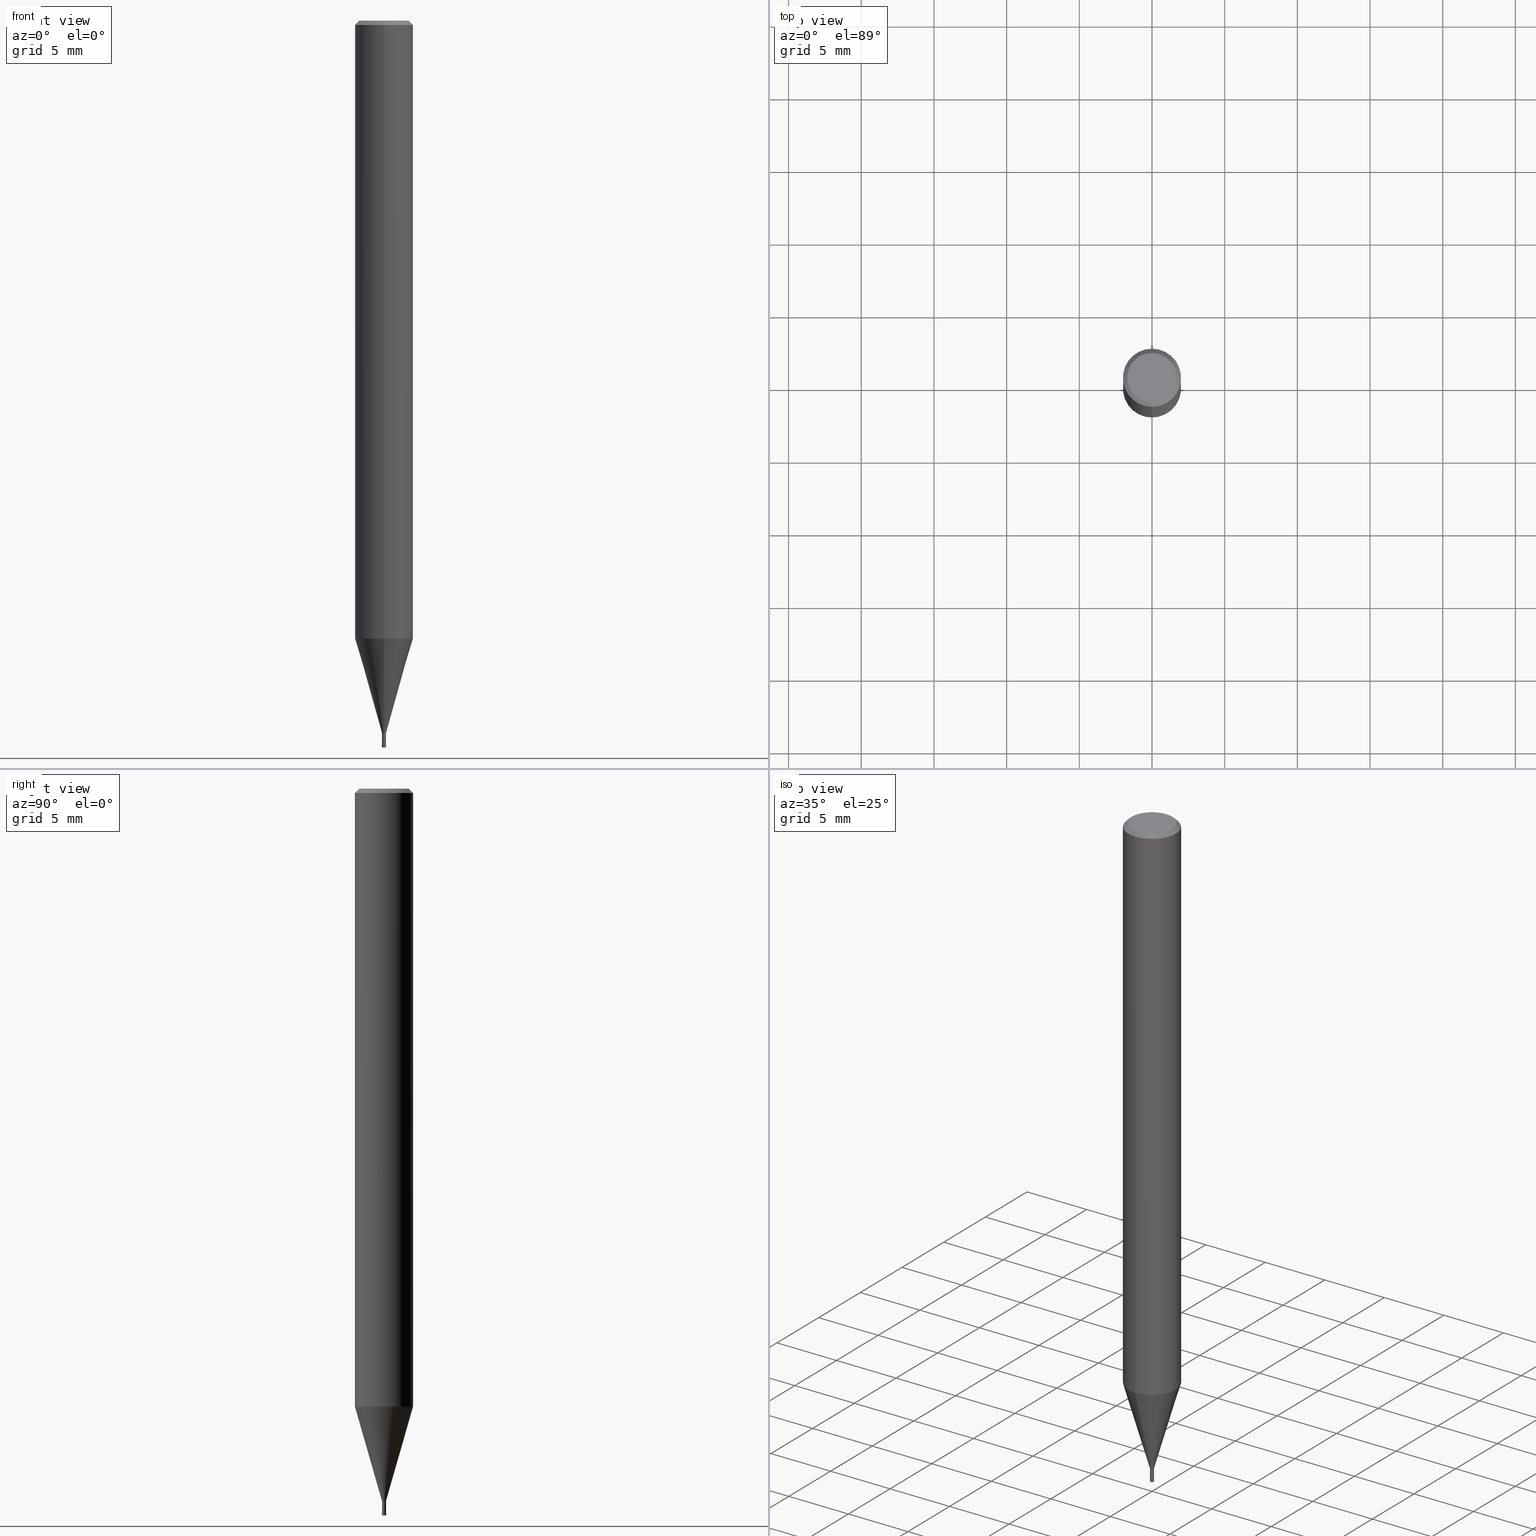
[diagram: canonical four-view strip — front | top / right | iso, engineering-drawing reading convention]
A machine part, canonical four-view strip (front | top / right | iso — engineering-drawing reading convention). The complete STEP part file that produces these views, byte-faithful:
ISO-10303-21;
HEADER;
FILE_DESCRIPTION(('no description'),'unknown implementation level');
FILE_NAME('HLRS4003-002-010-Huellk.stp','  ',('CIMSOURCE GmbH'),('CADClick - KiM GmbH - www.kimweb.de'),'unknown preprocess','ACIS','unknown authorization');
FILE_SCHEMA(('automotive_design'));
ENDSEC;
DATA;
#1=MECHANICAL_DESIGN_GEOMETRIC_PRESENTATION_REPRESENTATION(' ',(#14,#15,#16,#17,#18,#19,#20,#21,#22,#23,#24,#25,#26,#27,#28,#29,#30,#31,#32,#33,#34,#35,#36,#37,#38,#39,#40,#41,#42,#43,#44,#45,#46,#47,#48,#49,#50,#51,#52,#53,#54,#55,#56,#57,#58,#59,#60,#61,#62,#63,#64,#65,#66,#67,#68,#69,#70,#71,#72,#73,#74,#75,#76,#77,#78,#79,#80,#81,#82,#83,#84,#85,#86,#87,#88,#89,#90,#91,#92,#93,#94,#95,#96,#97,#98,#99,#100,#101,#102,#103,#104,#105,#106,#107,#108,#109,#110,#111,#112,#113,#114,#115,#116,#117,#118,#119,#120,#121),#10);
#2=PRODUCT_DEFINITION_CONTEXT('',#122,'design');
#3=APPLICATION_PROTOCOL_DEFINITION('INTERNATIONAL STANDARD','automotive_design',1994,#122);
#4=PRODUCT_CATEGORY_RELATIONSHIP('NONE','NONE',#123,#124);
#5=SHAPE_DEFINITION_REPRESENTATION(#125,#126);
#6=PRODUCT_DEFINITION_CONTEXT('',#127,'design');
#7=APPLICATION_PROTOCOL_DEFINITION('INTERNATIONAL STANDARD','automotive_design',1994,#127);
#8=PRODUCT_CATEGORY_RELATIONSHIP('NONE','NONE',#128,#129);
#9=SHAPE_DEFINITION_REPRESENTATION(#130,#131);
#10= (GEOMETRIC_REPRESENTATION_CONTEXT(3)GLOBAL_UNCERTAINTY_ASSIGNED_CONTEXT((#134))GLOBAL_UNIT_ASSIGNED_CONTEXT((#136,#137,#138))REPRESENTATION_CONTEXT('NONE','WORKSPACE'));
#14=STYLED_ITEM('',(#140),#141);
#15=STYLED_ITEM('',(#142),#143);
#16=STYLED_ITEM('',(#144),#145);
#17=STYLED_ITEM('',(#146),#147);
#18=STYLED_ITEM('',(#148),#149);
#19=STYLED_ITEM('',(#150),#151);
#20=STYLED_ITEM('',(#152),#153);
#21=STYLED_ITEM('',(#154),#155);
#22=STYLED_ITEM('',(#156),#157);
#23=STYLED_ITEM('',(#158),#159);
#24=STYLED_ITEM('',(#160),#161);
#25=STYLED_ITEM('',(#162),#163);
#26=STYLED_ITEM('',(#164),#165);
#27=STYLED_ITEM('',(#166),#167);
#28=STYLED_ITEM('',(#168),#169);
#29=STYLED_ITEM('',(#170),#171);
#30=STYLED_ITEM('',(#172),#173);
#31=STYLED_ITEM('',(#174),#175);
#32=STYLED_ITEM('',(#176),#177);
#33=STYLED_ITEM('',(#178),#179);
#34=STYLED_ITEM('',(#180),#181);
#35=STYLED_ITEM('',(#182),#183);
#36=STYLED_ITEM('',(#184),#185);
#37=STYLED_ITEM('',(#186),#187);
#38=STYLED_ITEM('',(#188),#189);
#39=STYLED_ITEM('',(#190),#191);
#40=STYLED_ITEM('',(#192),#193);
#41=STYLED_ITEM('',(#194),#195);
#42=STYLED_ITEM('',(#196),#197);
#43=STYLED_ITEM('',(#198),#199);
#44=STYLED_ITEM('',(#200),#201);
#45=STYLED_ITEM('',(#202),#203);
#46=STYLED_ITEM('',(#204),#205);
#47=STYLED_ITEM('',(#206),#207);
#48=STYLED_ITEM('',(#208),#209);
#49=STYLED_ITEM('',(#210),#211);
#50=STYLED_ITEM('',(#212),#213);
#51=STYLED_ITEM('',(#214),#215);
#52=STYLED_ITEM('',(#216),#217);
#53=STYLED_ITEM('',(#218),#219);
#54=STYLED_ITEM('',(#220),#221);
#55=STYLED_ITEM('',(#222),#223);
#56=STYLED_ITEM('',(#224),#225);
#57=STYLED_ITEM('',(#226),#227);
#58=STYLED_ITEM('',(#228),#229);
#59=STYLED_ITEM('',(#230),#231);
#60=STYLED_ITEM('',(#232),#233);
#61=STYLED_ITEM('',(#234),#235);
#62=STYLED_ITEM('',(#236),#237);
#63=STYLED_ITEM('',(#238),#239);
#64=STYLED_ITEM('',(#240),#241);
#65=STYLED_ITEM('',(#242),#243);
#66=STYLED_ITEM('',(#244),#245);
#67=STYLED_ITEM('',(#246),#247);
#68=STYLED_ITEM('',(#248),#249);
#69=STYLED_ITEM('',(#250),#251);
#70=STYLED_ITEM('',(#252),#253);
#71=STYLED_ITEM('',(#254),#255);
#72=STYLED_ITEM('',(#256),#257);
#73=STYLED_ITEM('',(#258),#259);
#74=STYLED_ITEM('',(#260),#261);
#75=STYLED_ITEM('',(#262),#263);
#76=STYLED_ITEM('',(#264),#265);
#77=STYLED_ITEM('',(#266),#267);
#78=STYLED_ITEM('',(#268),#269);
#79=STYLED_ITEM('',(#270),#271);
#80=STYLED_ITEM('',(#272),#273);
#81=STYLED_ITEM('',(#274),#275);
#82=STYLED_ITEM('',(#276),#277);
#83=STYLED_ITEM('',(#278),#279);
#84=STYLED_ITEM('',(#280),#281);
#85=STYLED_ITEM('',(#282),#283);
#86=STYLED_ITEM('',(#284),#285);
#87=STYLED_ITEM('',(#286),#287);
#88=STYLED_ITEM('',(#288),#289);
#89=STYLED_ITEM('',(#290),#291);
#90=STYLED_ITEM('',(#292),#293);
#91=STYLED_ITEM('',(#294),#295);
#92=STYLED_ITEM('',(#296),#297);
#93=STYLED_ITEM('',(#298),#299);
#94=STYLED_ITEM('',(#300),#301);
#95=STYLED_ITEM('',(#302),#303);
#96=STYLED_ITEM('',(#304),#305);
#97=STYLED_ITEM('',(#306),#307);
#98=STYLED_ITEM('',(#308),#309);
#99=STYLED_ITEM('',(#310),#311);
#100=STYLED_ITEM('',(#312),#313);
#101=STYLED_ITEM('',(#314),#315);
#102=STYLED_ITEM('',(#316),#317);
#103=STYLED_ITEM('',(#318),#319);
#104=STYLED_ITEM('',(#320),#321);
#105=STYLED_ITEM('',(#322),#323);
#106=STYLED_ITEM('',(#324),#325);
#107=STYLED_ITEM('',(#326),#327);
#108=STYLED_ITEM('',(#328),#329);
#109=STYLED_ITEM('',(#330),#331);
#110=STYLED_ITEM('',(#332),#333);
#111=STYLED_ITEM('',(#334),#335);
#112=STYLED_ITEM('',(#336),#337);
#113=STYLED_ITEM('',(#338),#339);
#114=STYLED_ITEM('',(#340),#341);
#115=STYLED_ITEM('',(#342),#343);
#116=STYLED_ITEM('',(#344),#345);
#117=STYLED_ITEM('',(#346),#347);
#118=STYLED_ITEM('',(#348),#349);
#119=STYLED_ITEM('',(#350),#351);
#120=STYLED_ITEM('',(#352),#353);
#121=STYLED_ITEM('',(#354),#355);
#122=APPLICATION_CONTEXT(' ');
#123=PRODUCT_CATEGORY('part','NONE');
#124=PRODUCT_RELATED_PRODUCT_CATEGORY('detail',' ',(#356));
#125=PRODUCT_DEFINITION_SHAPE('NONE','NONE',#357);
#126=ADVANCED_BREP_SHAPE_REPRESENTATION('1',(#319,#358),#10);
#127=APPLICATION_CONTEXT(' ');
#128=PRODUCT_CATEGORY('part','NONE');
#129=PRODUCT_RELATED_PRODUCT_CATEGORY('detail',' ',(#359));
#130=PRODUCT_DEFINITION_SHAPE('NONE','NONE',#360);
#131=ADVANCED_BREP_SHAPE_REPRESENTATION('2',(#227,#361),#10);
#134=UNCERTAINTY_MEASURE_WITH_UNIT(LENGTH_MEASURE(1.0E-006),#136,'','');
#136= (CONVERSION_BASED_UNIT('MILLIMETRE',#364)LENGTH_UNIT()NAMED_UNIT(#367));
#137= (NAMED_UNIT(#369)PLANE_ANGLE_UNIT()SI_UNIT($,.RADIAN.));
#138= (NAMED_UNIT(#369)SOLID_ANGLE_UNIT()SI_UNIT($,.STERADIAN.));
#140=PRESENTATION_STYLE_ASSIGNMENT((#375));
#141=ADVANCED_FACE('',(#376),#377,.F.);
#142=PRESENTATION_STYLE_ASSIGNMENT((#378));
#143=EDGE_CURVE('',#203,#253,#379,.T.);
#144=PRESENTATION_STYLE_ASSIGNMENT((#380));
#145=EDGE_CURVE('',#279,#345,#381,.T.);
#146=PRESENTATION_STYLE_ASSIGNMENT((#382));
#147=EDGE_CURVE('',#217,#203,#383,.T.);
#148=PRESENTATION_STYLE_ASSIGNMENT((#384));
#149=EDGE_CURVE('',#187,#241,#385,.T.);
#150=PRESENTATION_STYLE_ASSIGNMENT((#386));
#151=ADVANCED_FACE('',(#387),#388,.T.);
#152=PRESENTATION_STYLE_ASSIGNMENT((#389));
#153=ADVANCED_FACE('',(#390,#391),#392,.T.);
#154=PRESENTATION_STYLE_ASSIGNMENT((#393));
#155=ADVANCED_FACE('',(#394),#395,.T.);
#156=PRESENTATION_STYLE_ASSIGNMENT((#396));
#157=ADVANCED_FACE('',(#397),#398,.T.);
#158=PRESENTATION_STYLE_ASSIGNMENT((#399));
#159=EDGE_CURVE('',#337,#211,#400,.T.);
#160=PRESENTATION_STYLE_ASSIGNMENT((#401));
#161=VERTEX_POINT('',#402);
#162=PRESENTATION_STYLE_ASSIGNMENT((#403));
#163=EDGE_CURVE('',#161,#259,#404,.T.);
#164=PRESENTATION_STYLE_ASSIGNMENT((#405));
#165=EDGE_CURVE('',#201,#183,#406,.T.);
#166=PRESENTATION_STYLE_ASSIGNMENT((#407));
#167=EDGE_CURVE('',#221,#253,#408,.T.);
#168=PRESENTATION_STYLE_ASSIGNMENT((#409));
#169=ADVANCED_FACE('',(#410),#411,.T.);
#170=PRESENTATION_STYLE_ASSIGNMENT((#412));
#171=VERTEX_POINT('',#413);
#172=PRESENTATION_STYLE_ASSIGNMENT((#414));
#173=EDGE_CURVE('',#229,#347,#415,.T.);
#174=PRESENTATION_STYLE_ASSIGNMENT((#416));
#175=EDGE_CURVE('',#201,#211,#417,.T.);
#176=PRESENTATION_STYLE_ASSIGNMENT((#418));
#177=EDGE_CURVE('',#229,#187,#419,.T.);
#178=PRESENTATION_STYLE_ASSIGNMENT((#420));
#179=ADVANCED_FACE('',(#421),#422,.F.);
#180=PRESENTATION_STYLE_ASSIGNMENT((#423));
#181=EDGE_CURVE('',#187,#307,#424,.T.);
#182=PRESENTATION_STYLE_ASSIGNMENT((#425));
#183=VERTEX_POINT('',#426);
#184=PRESENTATION_STYLE_ASSIGNMENT((#427));
#185=VERTEX_POINT('',#428);
#186=PRESENTATION_STYLE_ASSIGNMENT((#429));
#187=VERTEX_POINT('',#430);
#188=PRESENTATION_STYLE_ASSIGNMENT((#431));
#189=ADVANCED_FACE('',(#432),#433,.T.);
#190=PRESENTATION_STYLE_ASSIGNMENT((#434));
#191=EDGE_CURVE('',#341,#307,#435,.T.);
#192=PRESENTATION_STYLE_ASSIGNMENT((#436));
#193=EDGE_CURVE('',#307,#187,#437,.T.);
#194=PRESENTATION_STYLE_ASSIGNMENT((#438));
#195=ADVANCED_FACE('',(#439),#440,.T.);
#196=PRESENTATION_STYLE_ASSIGNMENT((#441));
#197=EDGE_CURVE('',#185,#243,#442,.T.);
#198=PRESENTATION_STYLE_ASSIGNMENT((#443));
#199=EDGE_CURVE('',#347,#229,#444,.T.);
#200=PRESENTATION_STYLE_ASSIGNMENT((#445));
#201=VERTEX_POINT('',#446);
#202=PRESENTATION_STYLE_ASSIGNMENT((#447));
#203=VERTEX_POINT('',#448);
#204=PRESENTATION_STYLE_ASSIGNMENT((#449));
#205=EDGE_CURVE('',#339,#299,#450,.T.);
#206=PRESENTATION_STYLE_ASSIGNMENT((#451));
#207=EDGE_CURVE('',#343,#259,#452,.T.);
#208=PRESENTATION_STYLE_ASSIGNMENT((#453));
#209=EDGE_CURVE('',#307,#347,#454,.T.);
#210=PRESENTATION_STYLE_ASSIGNMENT((#455));
#211=VERTEX_POINT('',#456);
#212=PRESENTATION_STYLE_ASSIGNMENT((#457));
#213=EDGE_CURVE('',#339,#275,#458,.T.);
#214=PRESENTATION_STYLE_ASSIGNMENT((#459));
#215=ADVANCED_FACE('',(#460),#461,.T.);
#216=PRESENTATION_STYLE_ASSIGNMENT((#462));
#217=VERTEX_POINT('',#463);
#218=PRESENTATION_STYLE_ASSIGNMENT((#464));
#219=EDGE_CURVE('',#335,#161,#465,.T.);
#220=PRESENTATION_STYLE_ASSIGNMENT((#466));
#221=VERTEX_POINT('',#467);
#222=PRESENTATION_STYLE_ASSIGNMENT((#468));
#223=ADVANCED_FACE('',(#469),#470,.T.);
#224=PRESENTATION_STYLE_ASSIGNMENT((#471));
#225=EDGE_CURVE('',#211,#201,#472,.T.);
#226=PRESENTATION_STYLE_ASSIGNMENT((#473));
#227=MANIFOLD_SOLID_BREP('2',#474);
#228=PRESENTATION_STYLE_ASSIGNMENT((#475));
#229=VERTEX_POINT('',#476);
#230=PRESENTATION_STYLE_ASSIGNMENT((#477));
#231=ADVANCED_FACE('',(#478),#479,.F.);
#232=PRESENTATION_STYLE_ASSIGNMENT((#480));
#233=EDGE_CURVE('',#345,#279,#481,.T.);
#234=PRESENTATION_STYLE_ASSIGNMENT((#482));
#235=EDGE_CURVE('',#311,#171,#483,.T.);
#236=PRESENTATION_STYLE_ASSIGNMENT((#484));
#237=EDGE_CURVE('',#259,#343,#485,.T.);
#238=PRESENTATION_STYLE_ASSIGNMENT((#486));
#239=EDGE_CURVE('',#343,#335,#487,.T.);
#240=PRESENTATION_STYLE_ASSIGNMENT((#488));
#241=VERTEX_POINT('',#489);
#242=PRESENTATION_STYLE_ASSIGNMENT((#490));
#243=VERTEX_POINT('',#491);
#244=PRESENTATION_STYLE_ASSIGNMENT((#492));
#245=VERTEX_POINT('',#493);
#246=PRESENTATION_STYLE_ASSIGNMENT((#494));
#247=ADVANCED_FACE('',(#495),#496,.T.);
#248=PRESENTATION_STYLE_ASSIGNMENT((#497));
#249=EDGE_CURVE('',#221,#217,#498,.T.);
#250=PRESENTATION_STYLE_ASSIGNMENT((#499));
#251=ADVANCED_FACE('',(#500),#501,.T.);
#252=PRESENTATION_STYLE_ASSIGNMENT((#502));
#253=VERTEX_POINT('',#503);
#254=PRESENTATION_STYLE_ASSIGNMENT((#504));
#255=EDGE_CURVE('',#337,#297,#505,.T.);
#256=PRESENTATION_STYLE_ASSIGNMENT((#506));
#257=EDGE_CURVE('',#241,#341,#507,.T.);
#258=PRESENTATION_STYLE_ASSIGNMENT((#508));
#259=VERTEX_POINT('',#509);
#260=PRESENTATION_STYLE_ASSIGNMENT((#510));
#261=EDGE_CURVE('',#243,#161,#511,.T.);
#262=PRESENTATION_STYLE_ASSIGNMENT((#512));
#263=EDGE_CURVE('',#341,#241,#513,.T.);
#264=PRESENTATION_STYLE_ASSIGNMENT((#514));
#265=ADVANCED_FACE('',(#515),#516,.F.);
#266=PRESENTATION_STYLE_ASSIGNMENT((#517));
#267=EDGE_CURVE('',#243,#185,#518,.T.);
#268=PRESENTATION_STYLE_ASSIGNMENT((#519));
#269=EDGE_CURVE('',#297,#337,#520,.T.);
#270=PRESENTATION_STYLE_ASSIGNMENT((#521));
#271=EDGE_CURVE('',#275,#339,#522,.T.);
#272=PRESENTATION_STYLE_ASSIGNMENT((#523));
#273=ADVANCED_FACE('',(#524),#525,.T.);
#274=PRESENTATION_STYLE_ASSIGNMENT((#526));
#275=VERTEX_POINT('',#527);
#276=PRESENTATION_STYLE_ASSIGNMENT((#528));
#277=EDGE_CURVE('',#171,#311,#529,.T.);
#278=PRESENTATION_STYLE_ASSIGNMENT((#530));
#279=VERTEX_POINT('',#531);
#280=PRESENTATION_STYLE_ASSIGNMENT((#532));
#281=ADVANCED_FACE('',(#533),#534,.T.);
#282=PRESENTATION_STYLE_ASSIGNMENT((#535));
#283=ADVANCED_FACE('',(#536,#537),#538,.T.);
#284=PRESENTATION_STYLE_ASSIGNMENT((#539));
#285=ADVANCED_FACE('',(#540),#541,.T.);
#286=PRESENTATION_STYLE_ASSIGNMENT((#542));
#287=EDGE_CURVE('',#327,#183,#543,.T.);
#288=PRESENTATION_STYLE_ASSIGNMENT((#544));
#289=EDGE_CURVE('',#299,#311,#545,.T.);
#290=PRESENTATION_STYLE_ASSIGNMENT((#546));
#291=EDGE_CURVE('',#161,#335,#547,.T.);
#292=PRESENTATION_STYLE_ASSIGNMENT((#548));
#293=ADVANCED_FACE('',(#549),#550,.T.);
#294=PRESENTATION_STYLE_ASSIGNMENT((#551));
#295=EDGE_CURVE('',#253,#345,#552,.T.);
#296=PRESENTATION_STYLE_ASSIGNMENT((#553));
#297=VERTEX_POINT('',#554);
#298=PRESENTATION_STYLE_ASSIGNMENT((#555));
#299=VERTEX_POINT('',#556);
#300=PRESENTATION_STYLE_ASSIGNMENT((#557));
#301=ADVANCED_FACE('',(#558,#559),#560,.T.);
#302=PRESENTATION_STYLE_ASSIGNMENT((#561));
#303=EDGE_CURVE('',#253,#221,#562,.T.);
#304=PRESENTATION_STYLE_ASSIGNMENT((#563));
#305=EDGE_CURVE('',#245,#275,#564,.T.);
#306=PRESENTATION_STYLE_ASSIGNMENT((#565));
#307=VERTEX_POINT('',#566);
#308=PRESENTATION_STYLE_ASSIGNMENT((#567));
#309=ADVANCED_FACE('',(#568),#569,.T.);
#310=PRESENTATION_STYLE_ASSIGNMENT((#570));
#311=VERTEX_POINT('',#571);
#312=PRESENTATION_STYLE_ASSIGNMENT((#572));
#313=ADVANCED_FACE('',(#573),#574,.T.);
#314=PRESENTATION_STYLE_ASSIGNMENT((#575));
#315=ADVANCED_FACE('',(#576),#577,.T.);
#316=PRESENTATION_STYLE_ASSIGNMENT((#578));
#317=EDGE_CURVE('',#245,#299,#579,.T.);
#318=PRESENTATION_STYLE_ASSIGNMENT((#580));
#319=MANIFOLD_SOLID_BREP('1',#581);
#320=PRESENTATION_STYLE_ASSIGNMENT((#582));
#321=EDGE_CURVE('',#299,#245,#583,.T.);
#322=PRESENTATION_STYLE_ASSIGNMENT((#584));
#323=EDGE_CURVE('',#201,#297,#585,.T.);
#324=PRESENTATION_STYLE_ASSIGNMENT((#586));
#325=EDGE_CURVE('',#279,#221,#587,.T.);
#326=PRESENTATION_STYLE_ASSIGNMENT((#588));
#327=VERTEX_POINT('',#589);
#328=PRESENTATION_STYLE_ASSIGNMENT((#590));
#329=EDGE_CURVE('',#335,#185,#591,.T.);
#330=PRESENTATION_STYLE_ASSIGNMENT((#592));
#331=EDGE_CURVE('',#203,#217,#593,.T.);
#332=PRESENTATION_STYLE_ASSIGNMENT((#594));
#333=ADVANCED_FACE('',(#595,#596),#597,.T.);
#334=PRESENTATION_STYLE_ASSIGNMENT((#598));
#335=VERTEX_POINT('',#599);
#336=PRESENTATION_STYLE_ASSIGNMENT((#600));
#337=VERTEX_POINT('',#601);
#338=PRESENTATION_STYLE_ASSIGNMENT((#602));
#339=VERTEX_POINT('',#603);
#340=PRESENTATION_STYLE_ASSIGNMENT((#604));
#341=VERTEX_POINT('',#605);
#342=PRESENTATION_STYLE_ASSIGNMENT((#606));
#343=VERTEX_POINT('',#607);
#344=PRESENTATION_STYLE_ASSIGNMENT((#608));
#345=VERTEX_POINT('',#609);
#346=PRESENTATION_STYLE_ASSIGNMENT((#610));
#347=VERTEX_POINT('',#611);
#348=PRESENTATION_STYLE_ASSIGNMENT((#612));
#349=EDGE_CURVE('',#183,#327,#613,.T.);
#350=PRESENTATION_STYLE_ASSIGNMENT((#614));
#351=EDGE_CURVE('',#327,#211,#615,.T.);
#352=PRESENTATION_STYLE_ASSIGNMENT((#616));
#353=ADVANCED_FACE('',(#617),#618,.T.);
#354=PRESENTATION_STYLE_ASSIGNMENT((#619));
#355=EDGE_CURVE('',#171,#245,#620,.T.);
#356=PRODUCT('1','1','PART-1-DESC',(#621));
#357=PRODUCT_DEFINITION('NONE','NONE',#622,#2);
#358=AXIS2_PLACEMENT_3D('',#623,#624,#625);
#359=PRODUCT('2','2','PART-2-DESC',(#626));
#360=PRODUCT_DEFINITION('NONE','NONE',#627,#6);
#361=AXIS2_PLACEMENT_3D('',#628,#629,#630);
#364=LENGTH_MEASURE_WITH_UNIT(LENGTH_MEASURE(1.0),#631);
#367=DIMENSIONAL_EXPONENTS(1.0,0.0,0.0,0.0,0.0,0.0,0.0);
#369=DIMENSIONAL_EXPONENTS(0.0,0.0,0.0,0.0,0.0,0.0,0.0);
#375=SURFACE_STYLE_USAGE(.BOTH.,#632);
#376=FACE_OUTER_BOUND('',#633,.T.);
#377=CYLINDRICAL_SURFACE('',#634,0.0675);
#378=CURVE_STYLE('',#635,POSITIVE_LENGTH_MEASURE(1.0E-006),#636);
#379=LINE('',#637,#638);
#380=CURVE_STYLE('',#639,POSITIVE_LENGTH_MEASURE(1.0E-006),#640);
#381=CIRCLE('',#641,0.1449);
#382=CURVE_STYLE('',#642,POSITIVE_LENGTH_MEASURE(1.0E-006),#643);
#383=CIRCLE('',#644,0.0675);
#384=CURVE_STYLE('',#645,POSITIVE_LENGTH_MEASURE(1.0E-006),#646);
#385=LINE('',#647,#648);
#386=SURFACE_STYLE_USAGE(.BOTH.,#649);
#387=FACE_OUTER_BOUND('',#650,.T.);
#388=CONICAL_SURFACE('',#651,0.106225,1.44239116379722);
#389=SURFACE_STYLE_USAGE(.BOTH.,#652);
#390=FACE_BOUND('',#653,.T.);
#391=FACE_OUTER_BOUND('',#654,.T.);
#392=PLANE('',#655);
#393=SURFACE_STYLE_USAGE(.BOTH.,#656);
#394=FACE_OUTER_BOUND('',#657,.T.);
#395=CYLINDRICAL_SURFACE('',#658,2.0);
#396=SURFACE_STYLE_USAGE(.BOTH.,#659);
#397=FACE_OUTER_BOUND('',#660,.T.);
#398=PLANE('',#661);
#399=CURVE_STYLE('',#662,POSITIVE_LENGTH_MEASURE(1.0E-006),#663);
#400=CIRCLE('',#664,0.0199999999999999);
#401=POINT_STYLE(' ',#665,POSITIVE_LENGTH_MEASURE(1.0E-006),#666);
#402=CARTESIAN_POINT('',(1.71383659217442E-017,-0.13995,-48.99));
#403=CURVE_STYLE('',#667,POSITIVE_LENGTH_MEASURE(1.0E-006),#668);
#404=LINE('',#669,#670);
#405=CURVE_STYLE('',#671,POSITIVE_LENGTH_MEASURE(1.0E-006),#672);
#406=LINE('',#673,#674);
#407=CURVE_STYLE('',#675,POSITIVE_LENGTH_MEASURE(1.0E-006),#676);
#408=CIRCLE('',#677,0.0675);
#409=SURFACE_STYLE_USAGE(.BOTH.,#678);
#410=FACE_OUTER_BOUND('',#679,.T.);
#411=PLANE('',#680);
#412=POINT_STYLE(' ',#681,POSITIVE_LENGTH_MEASURE(1.0E-006),#682);
#413=CARTESIAN_POINT('',(2.44921270764475E-016,-2.0,-42.503));
#414=CURVE_STYLE('',#683,POSITIVE_LENGTH_MEASURE(1.0E-006),#684);
#415=CIRCLE('',#685,0.0675);
#416=CURVE_STYLE('',#686,POSITIVE_LENGTH_MEASURE(1.0E-006),#687);
#417=CIRCLE('',#688,0.15);
#418=CURVE_STYLE('',#689,POSITIVE_LENGTH_MEASURE(1.0E-006),#690);
#419=LINE('',#691,#692);
#420=SURFACE_STYLE_USAGE(.BOTH.,#693);
#421=FACE_OUTER_BOUND('',#694,.T.);
#422=CONICAL_SURFACE('',#695,0.1062,1.44230912436268);
#423=CURVE_STYLE('',#696,POSITIVE_LENGTH_MEASURE(1.0E-006),#697);
#424=CIRCLE('',#698,0.0675);
#425=POINT_STYLE(' ',#699,POSITIVE_LENGTH_MEASURE(1.0E-006),#700);
#426=CARTESIAN_POINT('',(1.83568492437974E-017,-0.1499,-49.81));
#427=POINT_STYLE(' ',#701,POSITIVE_LENGTH_MEASURE(1.0E-006),#702);
#428=CARTESIAN_POINT('',(0.0,0.13995,-49.81));
#429=POINT_STYLE(' ',#703,POSITIVE_LENGTH_MEASURE(1.0E-006),#704);
#430=CARTESIAN_POINT('',(8.26609288830105E-018,-0.0675,-49.82));
#431=SURFACE_STYLE_USAGE(.BOTH.,#705);
#432=FACE_OUTER_BOUND('',#706,.T.);
#433=CYLINDRICAL_SURFACE('',#707,0.0675);
#434=CURVE_STYLE('',#708,POSITIVE_LENGTH_MEASURE(1.0E-006),#709);
#435=LINE('',#710,#711);
#436=CURVE_STYLE('',#712,POSITIVE_LENGTH_MEASURE(1.0E-006),#713);
#437=CIRCLE('',#714,0.0675);
#438=SURFACE_STYLE_USAGE(.BOTH.,#715);
#439=FACE_OUTER_BOUND('',#716,.T.);
#440=CYLINDRICAL_SURFACE('',#717,0.13995);
#441=CURVE_STYLE('',#718,POSITIVE_LENGTH_MEASURE(1.0E-006),#719);
#442=CIRCLE('',#720,0.13995);
#443=CURVE_STYLE('',#721,POSITIVE_LENGTH_MEASURE(1.0E-006),#722);
#444=CIRCLE('',#723,0.0675);
#445=POINT_STYLE(' ',#724,POSITIVE_LENGTH_MEASURE(1.0E-006),#725);
#446=CARTESIAN_POINT('',(1.83690953073357E-017,-0.15,-49.97));
#447=POINT_STYLE(' ',#726,POSITIVE_LENGTH_MEASURE(1.0E-006),#727);
#448=CARTESIAN_POINT('',(8.26609288830105E-018,-0.0675,-49.99));
#449=CURVE_STYLE('',#728,POSITIVE_LENGTH_MEASURE(1.0E-006),#729);
#450=LINE('',#730,#731);
#451=CURVE_STYLE('',#732,POSITIVE_LENGTH_MEASURE(1.0E-006),#733);
#452=CIRCLE('',#734,1.99995);
#453=CURVE_STYLE('',#735,POSITIVE_LENGTH_MEASURE(1.0E-006),#736);
#454=LINE('',#737,#738);
#455=POINT_STYLE(' ',#739,POSITIVE_LENGTH_MEASURE(1.0E-006),#740);
#456=CARTESIAN_POINT('',(0.0,0.15,-49.97));
#457=CURVE_STYLE('',#741,POSITIVE_LENGTH_MEASURE(1.0E-006),#742);
#458=CIRCLE('',#743,1.7);
#459=SURFACE_STYLE_USAGE(.BOTH.,#744);
#460=FACE_OUTER_BOUND('',#745,.T.);
#461=CYLINDRICAL_SURFACE('',#746,0.13995);
#462=POINT_STYLE(' ',#747,POSITIVE_LENGTH_MEASURE(1.0E-006),#748);
#463=CARTESIAN_POINT('',(0.0,0.0675,-49.99));
#464=CURVE_STYLE('',#749,POSITIVE_LENGTH_MEASURE(1.0E-006),#750);
#465=CIRCLE('',#751,0.13995);
#466=POINT_STYLE(' ',#752,POSITIVE_LENGTH_MEASURE(1.0E-006),#753);
#467=CARTESIAN_POINT('',(0.0,0.0675,-49.82));
#468=SURFACE_STYLE_USAGE(.BOTH.,#754);
#469=FACE_OUTER_BOUND('',#755,.T.);
#470=CONICAL_SURFACE('',#756,1.85,0.785398163397453);
#471=CURVE_STYLE('',#757,POSITIVE_LENGTH_MEASURE(1.0E-006),#758);
#472=CIRCLE('',#759,0.15);
#473=SURFACE_STYLE_USAGE(.BOTH.,#760);
#474=CLOSED_SHELL('',(#231,#247,#251,#179,#265,#301,#315,#353,#153,#141));
#475=POINT_STYLE(' ',#761,POSITIVE_LENGTH_MEASURE(1.0E-006),#762);
#476=CARTESIAN_POINT('',(8.26609288830105E-018,-0.0675,-49.945));
#477=SURFACE_STYLE_USAGE(.BOTH.,#763);
#478=FACE_OUTER_BOUND('',#764,.T.);
#479=CYLINDRICAL_SURFACE('',#765,0.0675);
#480=CURVE_STYLE('',#766,POSITIVE_LENGTH_MEASURE(1.0E-006),#767);
#481=CIRCLE('',#768,0.1449);
#482=CURVE_STYLE('',#769,POSITIVE_LENGTH_MEASURE(1.0E-006),#770);
#483=CIRCLE('',#771,2.0);
#484=CURVE_STYLE('',#772,POSITIVE_LENGTH_MEASURE(1.0E-006),#773);
#485=CIRCLE('',#774,1.99995);
#486=CURVE_STYLE('',#775,POSITIVE_LENGTH_MEASURE(1.0E-006),#776);
#487=LINE('',#777,#778);
#488=POINT_STYLE(' ',#779,POSITIVE_LENGTH_MEASURE(1.0E-006),#780);
#489=CARTESIAN_POINT('',(1.77506690986554E-017,-0.14495,-49.81));
#490=POINT_STYLE(' ',#781,POSITIVE_LENGTH_MEASURE(1.0E-006),#782);
#491=CARTESIAN_POINT('',(1.71383659217442E-017,-0.13995,-49.81));
#492=POINT_STYLE(' ',#783,POSITIVE_LENGTH_MEASURE(1.0E-006),#784);
#493=CARTESIAN_POINT('',(2.44921270764475E-016,-2.0,-0.289999999999999));
#494=SURFACE_STYLE_USAGE(.BOTH.,#785);
#495=FACE_OUTER_BOUND('',#786,.T.);
#496=TOROIDAL_SURFACE('',#787,0.13,0.0199999999999999);
#497=CURVE_STYLE('',#788,POSITIVE_LENGTH_MEASURE(1.0E-006),#789);
#498=LINE('',#790,#791);
#499=SURFACE_STYLE_USAGE(.BOTH.,#792);
#500=FACE_OUTER_BOUND('',#793,.T.);
#501=CONICAL_SURFACE('',#794,0.14995,0.000624999918619742);
#502=POINT_STYLE(' ',#795,POSITIVE_LENGTH_MEASURE(1.0E-006),#796);
#503=CARTESIAN_POINT('',(8.26609288830105E-018,-0.0675,-49.82));
#504=CURVE_STYLE('',#797,POSITIVE_LENGTH_MEASURE(1.0E-006),#798);
#505=CIRCLE('',#799,0.13);
#506=CURVE_STYLE('',#800,POSITIVE_LENGTH_MEASURE(1.0E-006),#801);
#507=CIRCLE('',#802,0.14495);
#508=POINT_STYLE(' ',#803,POSITIVE_LENGTH_MEASURE(1.0E-006),#804);
#509=CARTESIAN_POINT('',(2.44915147732706E-016,-1.99995,-42.503));
#510=CURVE_STYLE('',#805,POSITIVE_LENGTH_MEASURE(1.0E-006),#806);
#511=LINE('',#807,#808);
#512=CURVE_STYLE('',#809,POSITIVE_LENGTH_MEASURE(1.0E-006),#810);
#513=CIRCLE('',#811,0.14495);
#514=SURFACE_STYLE_USAGE(.BOTH.,#812);
#515=FACE_OUTER_BOUND('',#813,.T.);
#516=CONICAL_SURFACE('',#814,0.1062,1.44230912436268);
#517=CURVE_STYLE('',#815,POSITIVE_LENGTH_MEASURE(1.0E-006),#816);
#518=CIRCLE('',#817,0.13995);
#519=CURVE_STYLE('',#818,POSITIVE_LENGTH_MEASURE(1.0E-006),#819);
#520=CIRCLE('',#820,0.13);
#521=CURVE_STYLE('',#821,POSITIVE_LENGTH_MEASURE(1.0E-006),#822);
#522=CIRCLE('',#823,1.7);
#523=SURFACE_STYLE_USAGE(.BOTH.,#824);
#524=FACE_OUTER_BOUND('',#825,.T.);
#525=CONICAL_SURFACE('',#826,0.106225,1.44239116379722);
#526=POINT_STYLE(' ',#827,POSITIVE_LENGTH_MEASURE(1.0E-006),#828);
#527=CARTESIAN_POINT('',(2.08183080149804E-016,-1.7,0.00999999999999801));
#528=CURVE_STYLE('',#829,POSITIVE_LENGTH_MEASURE(1.0E-006),#830);
#529=CIRCLE('',#831,2.0);
#530=POINT_STYLE(' ',#832,POSITIVE_LENGTH_MEASURE(1.0E-006),#833);
#531=CARTESIAN_POINT('',(0.0,0.1449,-49.81));
#532=SURFACE_STYLE_USAGE(.BOTH.,#834);
#533=FACE_OUTER_BOUND('',#835,.T.);
#534=CONICAL_SURFACE('',#836,1.85,0.785398163397453);
#535=SURFACE_STYLE_USAGE(.BOTH.,#837);
#536=FACE_OUTER_BOUND('',#838,.T.);
#537=FACE_BOUND('',#839,.T.);
#538=PLANE('',#840);
#539=SURFACE_STYLE_USAGE(.BOTH.,#841);
#540=FACE_OUTER_BOUND('',#842,.T.);
#541=CYLINDRICAL_SURFACE('',#843,2.0);
#542=CURVE_STYLE('',#844,POSITIVE_LENGTH_MEASURE(1.0E-006),#845);
#543=CIRCLE('',#846,0.1499);
#544=CURVE_STYLE('',#847,POSITIVE_LENGTH_MEASURE(1.0E-006),#848);
#545=LINE('',#849,#850);
#546=CURVE_STYLE('',#851,POSITIVE_LENGTH_MEASURE(1.0E-006),#852);
#547=CIRCLE('',#853,0.13995);
#548=SURFACE_STYLE_USAGE(.BOTH.,#854);
#549=FACE_OUTER_BOUND('',#855,.T.);
#550=CONICAL_SURFACE('',#856,1.06995,0.27923596926092);
#551=CURVE_STYLE('',#857,POSITIVE_LENGTH_MEASURE(1.0E-006),#858);
#552=LINE('',#859,#860);
#553=POINT_STYLE(' ',#861,POSITIVE_LENGTH_MEASURE(1.0E-006),#862);
#554=CARTESIAN_POINT('',(1.59198825996909E-017,-0.13,-49.99));
#555=POINT_STYLE(' ',#863,POSITIVE_LENGTH_MEASURE(1.0E-006),#864);
#556=CARTESIAN_POINT('',(0.0,2.0,-0.289999999999999));
#557=SURFACE_STYLE_USAGE(.BOTH.,#865);
#558=FACE_OUTER_BOUND('',#866,.T.);
#559=FACE_BOUND('',#867,.T.);
#560=PLANE('',#868);
#561=CURVE_STYLE('',#869,POSITIVE_LENGTH_MEASURE(1.0E-006),#870);
#562=CIRCLE('',#871,0.0675);
#563=CURVE_STYLE('',#872,POSITIVE_LENGTH_MEASURE(1.0E-006),#873);
#564=LINE('',#874,#875);
#565=POINT_STYLE(' ',#876,POSITIVE_LENGTH_MEASURE(1.0E-006),#877);
#566=CARTESIAN_POINT('',(0.0,0.0675,-49.82));
#567=SURFACE_STYLE_USAGE(.BOTH.,#878);
#568=FACE_OUTER_BOUND('',#879,.T.);
#569=CYLINDRICAL_SURFACE('',#880,0.0675);
#570=POINT_STYLE(' ',#881,POSITIVE_LENGTH_MEASURE(1.0E-006),#882);
#571=CARTESIAN_POINT('',(0.0,2.0,-42.503));
#572=SURFACE_STYLE_USAGE(.BOTH.,#883);
#573=FACE_OUTER_BOUND('',#884,.T.);
#574=CONICAL_SURFACE('',#885,1.06995,0.27923596926092);
#575=SURFACE_STYLE_USAGE(.BOTH.,#886);
#576=FACE_OUTER_BOUND('',#887,.T.);
#577=CONICAL_SURFACE('',#888,0.14995,0.000624999918619742);
#578=CURVE_STYLE('',#889,POSITIVE_LENGTH_MEASURE(1.0E-006),#890);
#579=CIRCLE('',#891,2.0);
#580=SURFACE_STYLE_USAGE(.BOTH.,#892);
#581=CLOSED_SHELL('',(#189,#151,#215,#293,#155,#281,#333,#169,#223,#285,#313,#195,#283,#273,#309,#157));
#582=CURVE_STYLE('',#893,POSITIVE_LENGTH_MEASURE(1.0E-006),#894);
#583=CIRCLE('',#895,2.0);
#584=CURVE_STYLE('',#896,POSITIVE_LENGTH_MEASURE(1.0E-006),#897);
#585=CIRCLE('',#898,0.0199999999999999);
#586=CURVE_STYLE('',#899,POSITIVE_LENGTH_MEASURE(1.0E-006),#900);
#587=LINE('',#901,#902);
#588=POINT_STYLE(' ',#903,POSITIVE_LENGTH_MEASURE(1.0E-006),#904);
#589=CARTESIAN_POINT('',(0.0,0.1499,-49.81));
#590=CURVE_STYLE('',#905,POSITIVE_LENGTH_MEASURE(1.0E-006),#906);
#591=LINE('',#907,#908);
#592=CURVE_STYLE('',#909,POSITIVE_LENGTH_MEASURE(1.0E-006),#910);
#593=CIRCLE('',#911,0.0675);
#594=SURFACE_STYLE_USAGE(.BOTH.,#912);
#595=FACE_OUTER_BOUND('',#913,.T.);
#596=FACE_BOUND('',#914,.T.);
#597=PLANE('',#915);
#598=POINT_STYLE(' ',#916,POSITIVE_LENGTH_MEASURE(1.0E-006),#917);
#599=CARTESIAN_POINT('',(0.0,0.13995,-48.99));
#600=POINT_STYLE(' ',#918,POSITIVE_LENGTH_MEASURE(1.0E-006),#919);
#601=CARTESIAN_POINT('',(0.0,0.13,-49.99));
#602=POINT_STYLE(' ',#920,POSITIVE_LENGTH_MEASURE(1.0E-006),#921);
#603=CARTESIAN_POINT('',(0.0,1.7,0.00999999999999801));
#604=POINT_STYLE(' ',#922,POSITIVE_LENGTH_MEASURE(1.0E-006),#923);
#605=CARTESIAN_POINT('',(0.0,0.14495,-49.81));
#606=POINT_STYLE(' ',#924,POSITIVE_LENGTH_MEASURE(1.0E-006),#925);
#607=CARTESIAN_POINT('',(0.0,1.99995,-42.503));
#608=POINT_STYLE(' ',#926,POSITIVE_LENGTH_MEASURE(1.0E-006),#927);
#609=CARTESIAN_POINT('',(1.77445460668862E-017,-0.1449,-49.81));
#610=POINT_STYLE(' ',#928,POSITIVE_LENGTH_MEASURE(1.0E-006),#929);
#611=CARTESIAN_POINT('',(0.0,0.0675,-49.945));
#612=CURVE_STYLE('',#930,POSITIVE_LENGTH_MEASURE(1.0E-006),#931);
#613=CIRCLE('',#932,0.1499);
#614=CURVE_STYLE('',#933,POSITIVE_LENGTH_MEASURE(1.0E-006),#934);
#615=LINE('',#935,#936);
#616=SURFACE_STYLE_USAGE(.BOTH.,#937);
#617=FACE_OUTER_BOUND('',#938,.T.);
#618=TOROIDAL_SURFACE('',#939,0.13,0.0199999999999999);
#619=CURVE_STYLE('',#940,POSITIVE_LENGTH_MEASURE(1.0E-006),#941);
#620=LINE('',#942,#943);
#621=PRODUCT_CONTEXT('',#122,'mechanical');
#622=PRODUCT_DEFINITION_FORMATION_WITH_SPECIFIED_SOURCE(' ','NONE',#356,.NOT_KNOWN.);
#623=CARTESIAN_POINT('',(0.0,0.0,0.0));
#624=DIRECTION('',(0.0,0.0,1.0));
#625=DIRECTION('',(1.0,0.0,0.0));
#626=PRODUCT_CONTEXT('',#127,'mechanical');
#627=PRODUCT_DEFINITION_FORMATION_WITH_SPECIFIED_SOURCE(' ','NONE',#359,.NOT_KNOWN.);
#628=CARTESIAN_POINT('',(0.0,0.0,0.0));
#629=DIRECTION('',(0.0,0.0,1.0));
#630=DIRECTION('',(1.0,0.0,0.0));
#631= (NAMED_UNIT(#367)LENGTH_UNIT()SI_UNIT(.MILLI.,.METRE.));
#632=SURFACE_SIDE_STYLE('',(#945));
#633=EDGE_LOOP('',(#946,#947,#948,#949));
#634=AXIS2_PLACEMENT_3D('',#950,#951,#952);
#635=DRAUGHTING_PRE_DEFINED_CURVE_FONT('continuous');
#636=COLOUR_RGB('',0.800000011920929,0.800000011920929,0.800000011920929);
#637=CARTESIAN_POINT('',(8.26609288830105E-018,-0.0675,-49.905));
#638=VECTOR('',#953,1.0);
#639=DRAUGHTING_PRE_DEFINED_CURVE_FONT('continuous');
#640=COLOUR_RGB('',0.800000011920929,0.800000011920929,0.800000011920929);
#641=AXIS2_PLACEMENT_3D('',#954,#955,#956);
#642=DRAUGHTING_PRE_DEFINED_CURVE_FONT('continuous');
#643=COLOUR_RGB('',0.800000011920929,0.800000011920929,0.800000011920929);
#644=AXIS2_PLACEMENT_3D('',#957,#958,#959);
#645=DRAUGHTING_PRE_DEFINED_CURVE_FONT('continuous');
#646=COLOUR_RGB('',0.498039215803146,0.498039215803146,0.498039215803146);
#647=CARTESIAN_POINT('',(1.30083809934782E-017,-0.106225,-49.815));
#648=VECTOR('',#960,1.0);
#649=SURFACE_SIDE_STYLE('',(#961));
#650=EDGE_LOOP('',(#962,#963,#964,#965));
#651=AXIS2_PLACEMENT_3D('',#966,#967,#968);
#652=SURFACE_SIDE_STYLE('',(#969));
#653=EDGE_LOOP('',(#970,#971));
#654=EDGE_LOOP('',(#972,#973));
#655=AXIS2_PLACEMENT_3D('',#974,#975,#976);
#656=SURFACE_SIDE_STYLE('',(#977));
#657=EDGE_LOOP('',(#978,#979,#980,#981));
#658=AXIS2_PLACEMENT_3D('',#982,#983,#984);
#659=SURFACE_SIDE_STYLE('',(#985));
#660=EDGE_LOOP('',(#986,#987));
#661=AXIS2_PLACEMENT_3D('',#988,#989,#990);
#662=DRAUGHTING_PRE_DEFINED_CURVE_FONT('continuous');
#663=COLOUR_RGB('',0.800000011920929,0.800000011920929,0.800000011920929);
#664=AXIS2_PLACEMENT_3D('',#991,#992,#993);
#665=PRE_DEFINED_MARKER('');
#666=COLOUR_RGB('',0.498039215803146,0.498039215803146,0.498039215803146);
#667=DRAUGHTING_PRE_DEFINED_CURVE_FONT('continuous');
#668=COLOUR_RGB('',0.498039215803146,0.498039215803146,0.498039215803146);
#669=CARTESIAN_POINT('',(1.31026756827225E-016,-1.06995,-45.7465));
#670=VECTOR('',#994,1.0);
#671=DRAUGHTING_PRE_DEFINED_CURVE_FONT('continuous');
#672=COLOUR_RGB('',0.800000011920929,0.800000011920929,0.800000011920929);
#673=CARTESIAN_POINT('',(1.83629722755665E-017,-0.14995,-49.89));
#674=VECTOR('',#995,1.0);
#675=DRAUGHTING_PRE_DEFINED_CURVE_FONT('continuous');
#676=COLOUR_RGB('',0.800000011920929,0.800000011920929,0.800000011920929);
#677=AXIS2_PLACEMENT_3D('',#996,#997,#998);
#678=SURFACE_SIDE_STYLE('',(#999));
#679=EDGE_LOOP('',(#1000,#1001));
#680=AXIS2_PLACEMENT_3D('',#1002,#1003,#1004);
#681=PRE_DEFINED_MARKER('');
#682=COLOUR_RGB('',0.498039215803146,0.498039215803146,0.498039215803146);
#683=DRAUGHTING_PRE_DEFINED_CURVE_FONT('continuous');
#684=COLOUR_RGB('',0.498039215803146,0.498039215803146,0.498039215803146);
#685=AXIS2_PLACEMENT_3D('',#1005,#1006,#1007);
#686=DRAUGHTING_PRE_DEFINED_CURVE_FONT('continuous');
#687=COLOUR_RGB('',0.800000011920929,0.800000011920929,0.800000011920929);
#688=AXIS2_PLACEMENT_3D('',#1008,#1009,#1010);
#689=DRAUGHTING_PRE_DEFINED_CURVE_FONT('continuous');
#690=COLOUR_RGB('',0.498039215803146,0.498039215803146,0.498039215803146);
#691=CARTESIAN_POINT('',(8.26609288830105E-018,-0.0675,-49.8825));
#692=VECTOR('',#1011,1.0);
#693=SURFACE_SIDE_STYLE('',(#1012));
#694=EDGE_LOOP('',(#1013,#1014,#1015,#1016));
#695=AXIS2_PLACEMENT_3D('',#1017,#1018,#1019);
#696=DRAUGHTING_PRE_DEFINED_CURVE_FONT('continuous');
#697=COLOUR_RGB('',0.498039215803146,0.498039215803146,0.498039215803146);
#698=AXIS2_PLACEMENT_3D('',#1020,#1021,#1022);
#699=PRE_DEFINED_MARKER('');
#700=COLOUR_RGB('',0.800000011920929,0.800000011920929,0.800000011920929);
#701=PRE_DEFINED_MARKER('');
#702=COLOUR_RGB('',0.498039215803146,0.498039215803146,0.498039215803146);
#703=PRE_DEFINED_MARKER('');
#704=COLOUR_RGB('',0.498039215803146,0.498039215803146,0.498039215803146);
#705=SURFACE_SIDE_STYLE('',(#1023));
#706=EDGE_LOOP('',(#1024,#1025,#1026,#1027));
#707=AXIS2_PLACEMENT_3D('',#1028,#1029,#1030);
#708=DRAUGHTING_PRE_DEFINED_CURVE_FONT('continuous');
#709=COLOUR_RGB('',0.498039215803146,0.498039215803146,0.498039215803146);
#710=CARTESIAN_POINT('',(-1.30083809934782E-017,0.106225,-49.815));
#711=VECTOR('',#1031,1.0);
#712=DRAUGHTING_PRE_DEFINED_CURVE_FONT('continuous');
#713=COLOUR_RGB('',0.498039215803146,0.498039215803146,0.498039215803146);
#714=AXIS2_PLACEMENT_3D('',#1032,#1033,#1034);
#715=SURFACE_SIDE_STYLE('',(#1035));
#716=EDGE_LOOP('',(#1036,#1037,#1038,#1039));
#717=AXIS2_PLACEMENT_3D('',#1040,#1041,#1042);
#718=DRAUGHTING_PRE_DEFINED_CURVE_FONT('continuous');
#719=COLOUR_RGB('',0.498039215803146,0.498039215803146,0.498039215803146);
#720=AXIS2_PLACEMENT_3D('',#1043,#1044,#1045);
#721=DRAUGHTING_PRE_DEFINED_CURVE_FONT('continuous');
#722=COLOUR_RGB('',0.498039215803146,0.498039215803146,0.498039215803146);
#723=AXIS2_PLACEMENT_3D('',#1046,#1047,#1048);
#724=PRE_DEFINED_MARKER('');
#725=COLOUR_RGB('',0.800000011920929,0.800000011920929,0.800000011920929);
#726=PRE_DEFINED_MARKER('');
#727=COLOUR_RGB('',0.800000011920929,0.800000011920929,0.800000011920929);
#728=DRAUGHTING_PRE_DEFINED_CURVE_FONT('continuous');
#729=COLOUR_RGB('',0.498039215803146,0.498039215803146,0.498039215803146);
#730=CARTESIAN_POINT('',(-2.2655217545714E-016,1.85,-0.140000000000001));
#731=VECTOR('',#1049,1.0);
#732=DRAUGHTING_PRE_DEFINED_CURVE_FONT('continuous');
#733=COLOUR_RGB('',0.498039215803146,0.498039215803146,0.498039215803146);
#734=AXIS2_PLACEMENT_3D('',#1050,#1051,#1052);
#735=DRAUGHTING_PRE_DEFINED_CURVE_FONT('continuous');
#736=COLOUR_RGB('',0.498039215803146,0.498039215803146,0.498039215803146);
#737=CARTESIAN_POINT('',(-8.26609288830105E-018,0.0675,-49.8825));
#738=VECTOR('',#1053,1.0);
#739=PRE_DEFINED_MARKER('');
#740=COLOUR_RGB('',0.800000011920929,0.800000011920929,0.800000011920929);
#741=DRAUGHTING_PRE_DEFINED_CURVE_FONT('continuous');
#742=COLOUR_RGB('',0.498039215803146,0.498039215803146,0.498039215803146);
#743=AXIS2_PLACEMENT_3D('',#1054,#1055,#1056);
#744=SURFACE_SIDE_STYLE('',(#1057));
#745=EDGE_LOOP('',(#1058,#1059,#1060,#1061));
#746=AXIS2_PLACEMENT_3D('',#1062,#1063,#1064);
#747=PRE_DEFINED_MARKER('');
#748=COLOUR_RGB('',0.800000011920929,0.800000011920929,0.800000011920929);
#749=DRAUGHTING_PRE_DEFINED_CURVE_FONT('continuous');
#750=COLOUR_RGB('',0.498039215803146,0.498039215803146,0.498039215803146);
#751=AXIS2_PLACEMENT_3D('',#1065,#1066,#1067);
#752=PRE_DEFINED_MARKER('');
#753=COLOUR_RGB('',0.800000011920929,0.800000011920929,0.800000011920929);
#754=SURFACE_SIDE_STYLE('',(#1068));
#755=EDGE_LOOP('',(#1069,#1070,#1071,#1072));
#756=AXIS2_PLACEMENT_3D('',#1073,#1074,#1075);
#757=DRAUGHTING_PRE_DEFINED_CURVE_FONT('continuous');
#758=COLOUR_RGB('',0.800000011920929,0.800000011920929,0.800000011920929);
#759=AXIS2_PLACEMENT_3D('',#1076,#1077,#1078);
#760=SURFACE_SIDE_STYLE('',(#1079));
#761=PRE_DEFINED_MARKER('');
#762=COLOUR_RGB('',0.498039215803146,0.498039215803146,0.498039215803146);
#763=SURFACE_SIDE_STYLE('',(#1080));
#764=EDGE_LOOP('',(#1081,#1082,#1083,#1084));
#765=AXIS2_PLACEMENT_3D('',#1085,#1086,#1087);
#766=DRAUGHTING_PRE_DEFINED_CURVE_FONT('continuous');
#767=COLOUR_RGB('',0.800000011920929,0.800000011920929,0.800000011920929);
#768=AXIS2_PLACEMENT_3D('',#1088,#1089,#1090);
#769=DRAUGHTING_PRE_DEFINED_CURVE_FONT('continuous');
#770=COLOUR_RGB('',0.498039215803146,0.498039215803146,0.498039215803146);
#771=AXIS2_PLACEMENT_3D('',#1091,#1092,#1093);
#772=DRAUGHTING_PRE_DEFINED_CURVE_FONT('continuous');
#773=COLOUR_RGB('',0.498039215803146,0.498039215803146,0.498039215803146);
#774=AXIS2_PLACEMENT_3D('',#1094,#1095,#1096);
#775=DRAUGHTING_PRE_DEFINED_CURVE_FONT('continuous');
#776=COLOUR_RGB('',0.498039215803146,0.498039215803146,0.498039215803146);
#777=CARTESIAN_POINT('',(-1.31026756827225E-016,1.06995,-45.7465));
#778=VECTOR('',#1097,1.0);
#779=PRE_DEFINED_MARKER('');
#780=COLOUR_RGB('',0.498039215803146,0.498039215803146,0.498039215803146);
#781=PRE_DEFINED_MARKER('');
#782=COLOUR_RGB('',0.498039215803146,0.498039215803146,0.498039215803146);
#783=PRE_DEFINED_MARKER('');
#784=COLOUR_RGB('',0.498039215803146,0.498039215803146,0.498039215803146);
#785=SURFACE_SIDE_STYLE('',(#1098));
#786=EDGE_LOOP('',(#1099,#1100,#1101,#1102));
#787=AXIS2_PLACEMENT_3D('',#1103,#1104,#1105);
#788=DRAUGHTING_PRE_DEFINED_CURVE_FONT('continuous');
#789=COLOUR_RGB('',0.800000011920929,0.800000011920929,0.800000011920929);
#790=CARTESIAN_POINT('',(-8.26609288830105E-018,0.0675,-49.905));
#791=VECTOR('',#1106,1.0);
#792=SURFACE_SIDE_STYLE('',(#1107));
#793=EDGE_LOOP('',(#1108,#1109,#1110,#1111));
#794=AXIS2_PLACEMENT_3D('',#1112,#1113,#1114);
#795=PRE_DEFINED_MARKER('');
#796=COLOUR_RGB('',0.800000011920929,0.800000011920929,0.800000011920929);
#797=DRAUGHTING_PRE_DEFINED_CURVE_FONT('continuous');
#798=COLOUR_RGB('',0.800000011920929,0.800000011920929,0.800000011920929);
#799=AXIS2_PLACEMENT_3D('',#1115,#1116,#1117);
#800=DRAUGHTING_PRE_DEFINED_CURVE_FONT('continuous');
#801=COLOUR_RGB('',0.498039215803146,0.498039215803146,0.498039215803146);
#802=AXIS2_PLACEMENT_3D('',#1118,#1119,#1120);
#803=PRE_DEFINED_MARKER('');
#804=COLOUR_RGB('',0.498039215803146,0.498039215803146,0.498039215803146);
#805=DRAUGHTING_PRE_DEFINED_CURVE_FONT('continuous');
#806=COLOUR_RGB('',0.498039215803146,0.498039215803146,0.498039215803146);
#807=CARTESIAN_POINT('',(1.71383659217442E-017,-0.13995,-49.4));
#808=VECTOR('',#1121,1.0);
#809=DRAUGHTING_PRE_DEFINED_CURVE_FONT('continuous');
#810=COLOUR_RGB('',0.498039215803146,0.498039215803146,0.498039215803146);
#811=AXIS2_PLACEMENT_3D('',#1122,#1123,#1124);
#812=SURFACE_SIDE_STYLE('',(#1125));
#813=EDGE_LOOP('',(#1126,#1127,#1128,#1129));
#814=AXIS2_PLACEMENT_3D('',#1130,#1131,#1132);
#815=DRAUGHTING_PRE_DEFINED_CURVE_FONT('continuous');
#816=COLOUR_RGB('',0.498039215803146,0.498039215803146,0.498039215803146);
#817=AXIS2_PLACEMENT_3D('',#1133,#1134,#1135);
#818=DRAUGHTING_PRE_DEFINED_CURVE_FONT('continuous');
#819=COLOUR_RGB('',0.800000011920929,0.800000011920929,0.800000011920929);
#820=AXIS2_PLACEMENT_3D('',#1136,#1137,#1138);
#821=DRAUGHTING_PRE_DEFINED_CURVE_FONT('continuous');
#822=COLOUR_RGB('',0.498039215803146,0.498039215803146,0.498039215803146);
#823=AXIS2_PLACEMENT_3D('',#1139,#1140,#1141);
#824=SURFACE_SIDE_STYLE('',(#1142));
#825=EDGE_LOOP('',(#1143,#1144,#1145,#1146));
#826=AXIS2_PLACEMENT_3D('',#1147,#1148,#1149);
#827=PRE_DEFINED_MARKER('');
#828=COLOUR_RGB('',0.498039215803146,0.498039215803146,0.498039215803146);
#829=DRAUGHTING_PRE_DEFINED_CURVE_FONT('continuous');
#830=COLOUR_RGB('',0.498039215803146,0.498039215803146,0.498039215803146);
#831=AXIS2_PLACEMENT_3D('',#1150,#1151,#1152);
#832=PRE_DEFINED_MARKER('');
#833=COLOUR_RGB('',0.800000011920929,0.800000011920929,0.800000011920929);
#834=SURFACE_SIDE_STYLE('',(#1153));
#835=EDGE_LOOP('',(#1154,#1155,#1156,#1157));
#836=AXIS2_PLACEMENT_3D('',#1158,#1159,#1160);
#837=SURFACE_SIDE_STYLE('',(#1161));
#838=EDGE_LOOP('',(#1162,#1163));
#839=EDGE_LOOP('',(#1164,#1165));
#840=AXIS2_PLACEMENT_3D('',#1166,#1167,#1168);
#841=SURFACE_SIDE_STYLE('',(#1169));
#842=EDGE_LOOP('',(#1170,#1171,#1172,#1173));
#843=AXIS2_PLACEMENT_3D('',#1174,#1175,#1176);
#844=DRAUGHTING_PRE_DEFINED_CURVE_FONT('continuous');
#845=COLOUR_RGB('',0.800000011920929,0.800000011920929,0.800000011920929);
#846=AXIS2_PLACEMENT_3D('',#1177,#1178,#1179);
#847=DRAUGHTING_PRE_DEFINED_CURVE_FONT('continuous');
#848=COLOUR_RGB('',0.498039215803146,0.498039215803146,0.498039215803146);
#849=CARTESIAN_POINT('',(-2.44921270764475E-016,2.0,-21.3965));
#850=VECTOR('',#1180,1.0);
#851=DRAUGHTING_PRE_DEFINED_CURVE_FONT('continuous');
#852=COLOUR_RGB('',0.498039215803146,0.498039215803146,0.498039215803146);
#853=AXIS2_PLACEMENT_3D('',#1181,#1182,#1183);
#854=SURFACE_SIDE_STYLE('',(#1184));
#855=EDGE_LOOP('',(#1185,#1186,#1187,#1188));
#856=AXIS2_PLACEMENT_3D('',#1189,#1190,#1191);
#857=DRAUGHTING_PRE_DEFINED_CURVE_FONT('continuous');
#858=COLOUR_RGB('',0.800000011920929,0.800000011920929,0.800000011920929);
#859=CARTESIAN_POINT('',(1.30053194775936E-017,-0.1062,-49.815));
#860=VECTOR('',#1192,1.0);
#861=PRE_DEFINED_MARKER('');
#862=COLOUR_RGB('',0.800000011920929,0.800000011920929,0.800000011920929);
#863=PRE_DEFINED_MARKER('');
#864=COLOUR_RGB('',0.498039215803146,0.498039215803146,0.498039215803146);
#865=SURFACE_SIDE_STYLE('',(#1193));
#866=EDGE_LOOP('',(#1194,#1195));
#867=EDGE_LOOP('',(#1196,#1197));
#868=AXIS2_PLACEMENT_3D('',#1198,#1199,#1200);
#869=DRAUGHTING_PRE_DEFINED_CURVE_FONT('continuous');
#870=COLOUR_RGB('',0.800000011920929,0.800000011920929,0.800000011920929);
#871=AXIS2_PLACEMENT_3D('',#1201,#1202,#1203);
#872=DRAUGHTING_PRE_DEFINED_CURVE_FONT('continuous');
#873=COLOUR_RGB('',0.498039215803146,0.498039215803146,0.498039215803146);
#874=CARTESIAN_POINT('',(2.2655217545714E-016,-1.85,-0.140000000000001));
#875=VECTOR('',#1204,1.0);
#876=PRE_DEFINED_MARKER('');
#877=COLOUR_RGB('',0.498039215803146,0.498039215803146,0.498039215803146);
#878=SURFACE_SIDE_STYLE('',(#1205));
#879=EDGE_LOOP('',(#1206,#1207,#1208,#1209));
#880=AXIS2_PLACEMENT_3D('',#1210,#1211,#1212);
#881=PRE_DEFINED_MARKER('');
#882=COLOUR_RGB('',0.498039215803146,0.498039215803146,0.498039215803146);
#883=SURFACE_SIDE_STYLE('',(#1213));
#884=EDGE_LOOP('',(#1214,#1215,#1216,#1217));
#885=AXIS2_PLACEMENT_3D('',#1218,#1219,#1220);
#886=SURFACE_SIDE_STYLE('',(#1221));
#887=EDGE_LOOP('',(#1222,#1223,#1224,#1225));
#888=AXIS2_PLACEMENT_3D('',#1226,#1227,#1228);
#889=DRAUGHTING_PRE_DEFINED_CURVE_FONT('continuous');
#890=COLOUR_RGB('',0.498039215803146,0.498039215803146,0.498039215803146);
#891=AXIS2_PLACEMENT_3D('',#1229,#1230,#1231);
#892=SURFACE_SIDE_STYLE('',(#1232));
#893=DRAUGHTING_PRE_DEFINED_CURVE_FONT('continuous');
#894=COLOUR_RGB('',0.498039215803146,0.498039215803146,0.498039215803146);
#895=AXIS2_PLACEMENT_3D('',#1233,#1234,#1235);
#896=DRAUGHTING_PRE_DEFINED_CURVE_FONT('continuous');
#897=COLOUR_RGB('',0.800000011920929,0.800000011920929,0.800000011920929);
#898=AXIS2_PLACEMENT_3D('',#1236,#1237,#1238);
#899=DRAUGHTING_PRE_DEFINED_CURVE_FONT('continuous');
#900=COLOUR_RGB('',0.800000011920929,0.800000011920929,0.800000011920929);
#901=CARTESIAN_POINT('',(-1.30053194775936E-017,0.1062,-49.815));
#902=VECTOR('',#1239,1.0);
#903=PRE_DEFINED_MARKER('');
#904=COLOUR_RGB('',0.800000011920929,0.800000011920929,0.800000011920929);
#905=DRAUGHTING_PRE_DEFINED_CURVE_FONT('continuous');
#906=COLOUR_RGB('',0.498039215803146,0.498039215803146,0.498039215803146);
#907=CARTESIAN_POINT('',(-1.71383659217442E-017,0.13995,-49.4));
#908=VECTOR('',#1240,1.0);
#909=DRAUGHTING_PRE_DEFINED_CURVE_FONT('continuous');
#910=COLOUR_RGB('',0.800000011920929,0.800000011920929,0.800000011920929);
#911=AXIS2_PLACEMENT_3D('',#1241,#1242,#1243);
#912=SURFACE_SIDE_STYLE('',(#1244));
#913=EDGE_LOOP('',(#1245,#1246));
#914=EDGE_LOOP('',(#1247,#1248));
#915=AXIS2_PLACEMENT_3D('',#1249,#1250,#1251);
#916=PRE_DEFINED_MARKER('');
#917=COLOUR_RGB('',0.498039215803146,0.498039215803146,0.498039215803146);
#918=PRE_DEFINED_MARKER('');
#919=COLOUR_RGB('',0.800000011920929,0.800000011920929,0.800000011920929);
#920=PRE_DEFINED_MARKER('');
#921=COLOUR_RGB('',0.498039215803146,0.498039215803146,0.498039215803146);
#922=PRE_DEFINED_MARKER('');
#923=COLOUR_RGB('',0.498039215803146,0.498039215803146,0.498039215803146);
#924=PRE_DEFINED_MARKER('');
#925=COLOUR_RGB('',0.498039215803146,0.498039215803146,0.498039215803146);
#926=PRE_DEFINED_MARKER('');
#927=COLOUR_RGB('',0.800000011920929,0.800000011920929,0.800000011920929);
#928=PRE_DEFINED_MARKER('');
#929=COLOUR_RGB('',0.498039215803146,0.498039215803146,0.498039215803146);
#930=DRAUGHTING_PRE_DEFINED_CURVE_FONT('continuous');
#931=COLOUR_RGB('',0.800000011920929,0.800000011920929,0.800000011920929);
#932=AXIS2_PLACEMENT_3D('',#1252,#1253,#1254);
#933=DRAUGHTING_PRE_DEFINED_CURVE_FONT('continuous');
#934=COLOUR_RGB('',0.800000011920929,0.800000011920929,0.800000011920929);
#935=CARTESIAN_POINT('',(-1.83629722755665E-017,0.14995,-49.89));
#936=VECTOR('',#1255,1.0);
#937=SURFACE_SIDE_STYLE('',(#1256));
#938=EDGE_LOOP('',(#1257,#1258,#1259,#1260));
#939=AXIS2_PLACEMENT_3D('',#1261,#1262,#1263);
#940=DRAUGHTING_PRE_DEFINED_CURVE_FONT('continuous');
#941=COLOUR_RGB('',0.498039215803146,0.498039215803146,0.498039215803146);
#942=CARTESIAN_POINT('',(2.44921270764475E-016,-2.0,-21.3965));
#943=VECTOR('',#1264,1.0);
#945=SURFACE_STYLE_FILL_AREA(#1265);
#946=ORIENTED_EDGE('',*,*,#249,.T.);
#947=ORIENTED_EDGE('',*,*,#147,.T.);
#948=ORIENTED_EDGE('',*,*,#143,.T.);
#949=ORIENTED_EDGE('',*,*,#167,.F.);
#950=CARTESIAN_POINT('',(0.0,0.0,-49.905));
#951=DIRECTION('',(-0.0,-0.0,1.0));
#952=DIRECTION('',(0.0,1.0,0.0));
#953=DIRECTION('',(0.0,-0.0,1.0));
#954=CARTESIAN_POINT('',(0.0,0.0,-49.81));
#955=DIRECTION('',(0.0,0.0,-1.0));
#956=DIRECTION('',(0.0,1.0,0.0));
#957=CARTESIAN_POINT('',(0.0,0.0,-49.99));
#958=DIRECTION('',(0.0,0.0,-1.0));
#959=DIRECTION('',(0.0,1.0,0.0));
#960=DIRECTION('',(1.2145246325311E-016,-0.991767377933477,0.128052598829368));
#961=SURFACE_STYLE_FILL_AREA(#1266);
#962=ORIENTED_EDGE('',*,*,#191,.F.);
#963=ORIENTED_EDGE('',*,*,#263,.T.);
#964=ORIENTED_EDGE('',*,*,#149,.F.);
#965=ORIENTED_EDGE('',*,*,#193,.F.);
#966=CARTESIAN_POINT('',(0.0,0.0,-49.815));
#967=DIRECTION('',(-0.0,-0.0,1.0));
#968=DIRECTION('',(0.0,1.0,0.0));
#969=SURFACE_STYLE_FILL_AREA(#1267);
#970=ORIENTED_EDGE('',*,*,#147,.F.);
#971=ORIENTED_EDGE('',*,*,#331,.F.);
#972=ORIENTED_EDGE('',*,*,#255,.T.);
#973=ORIENTED_EDGE('',*,*,#269,.T.);
#974=CARTESIAN_POINT('',(0.0,0.09875,-49.99));
#975=DIRECTION('',(0.0,0.0,-1.0));
#976=DIRECTION('',(0.0,1.0,0.0));
#977=SURFACE_STYLE_FILL_AREA(#1268);
#978=ORIENTED_EDGE('',*,*,#289,.F.);
#979=ORIENTED_EDGE('',*,*,#321,.T.);
#980=ORIENTED_EDGE('',*,*,#355,.F.);
#981=ORIENTED_EDGE('',*,*,#235,.F.);
#982=CARTESIAN_POINT('',(0.0,0.0,-21.3965));
#983=DIRECTION('',(-0.0,-0.0,1.0));
#984=DIRECTION('',(0.0,1.0,0.0));
#985=SURFACE_STYLE_FILL_AREA(#1269);
#986=ORIENTED_EDGE('',*,*,#199,.T.);
#987=ORIENTED_EDGE('',*,*,#173,.T.);
#988=CARTESIAN_POINT('',(0.0,0.03375,-49.945));
#989=DIRECTION('',(0.0,0.0,-1.0));
#990=DIRECTION('',(0.0,1.0,0.0));
#991=CARTESIAN_POINT('',(-1.59198825996909E-017,0.13,-49.97));
#992=DIRECTION('',(1.0,1.22460635382238E-016,0.0));
#993=DIRECTION('',(-1.22460635382238E-016,1.0,0.0));
#994=DIRECTION('',(3.37527585527933E-017,-0.275621292078393,0.961266301995986));
#995=DIRECTION('',(-7.65378821650865E-020,0.000624999877929654,0.999999804687557));
#996=CARTESIAN_POINT('',(0.0,0.0,-49.82));
#997=DIRECTION('',(0.0,0.0,-1.0));
#998=DIRECTION('',(0.0,1.0,0.0));
#999=SURFACE_STYLE_FILL_AREA(#1270);
#1000=ORIENTED_EDGE('',*,*,#213,.F.);
#1001=ORIENTED_EDGE('',*,*,#271,.F.);
#1002=CARTESIAN_POINT('',(0.0,0.85,0.00999999999999801));
#1003=DIRECTION('',(-0.0,0.0,1.0));
#1004=DIRECTION('',(0.0,-1.0,0.0));
#1005=CARTESIAN_POINT('',(0.0,0.0,-49.945));
#1006=DIRECTION('',(0.0,0.0,-1.0));
#1007=DIRECTION('',(0.0,1.0,0.0));
#1008=CARTESIAN_POINT('',(0.0,0.0,-49.97));
#1009=DIRECTION('',(0.0,0.0,-1.0));
#1010=DIRECTION('',(0.0,1.0,0.0));
#1011=DIRECTION('',(-0.0,-0.0,1.0));
#1012=SURFACE_STYLE_FILL_AREA(#1271);
#1013=ORIENTED_EDGE('',*,*,#325,.F.);
#1014=ORIENTED_EDGE('',*,*,#233,.F.);
#1015=ORIENTED_EDGE('',*,*,#295,.F.);
#1016=ORIENTED_EDGE('',*,*,#303,.T.);
#1017=CARTESIAN_POINT('',(0.0,0.0,-49.815));
#1018=DIRECTION('',(-0.0,-0.0,1.0));
#1019=DIRECTION('',(0.0,1.0,0.0));
#1020=CARTESIAN_POINT('',(0.0,0.0,-49.82));
#1021=DIRECTION('',(0.0,0.0,-1.0));
#1022=DIRECTION('',(0.0,1.0,0.0));
#1023=SURFACE_STYLE_FILL_AREA(#1272);
#1024=ORIENTED_EDGE('',*,*,#209,.F.);
#1025=ORIENTED_EDGE('',*,*,#193,.T.);
#1026=ORIENTED_EDGE('',*,*,#177,.F.);
#1027=ORIENTED_EDGE('',*,*,#199,.F.);
#1028=CARTESIAN_POINT('',(0.0,0.0,-49.8825));
#1029=DIRECTION('',(-0.0,-0.0,1.0));
#1030=DIRECTION('',(0.0,1.0,0.0));
#1031=DIRECTION('',(1.2145246325311E-016,-0.991767377933477,-0.128052598829368));
#1032=CARTESIAN_POINT('',(0.0,0.0,-49.82));
#1033=DIRECTION('',(0.0,0.0,-1.0));
#1034=DIRECTION('',(0.0,1.0,0.0));
#1035=SURFACE_STYLE_FILL_AREA(#1273);
#1036=ORIENTED_EDGE('',*,*,#329,.T.);
#1037=ORIENTED_EDGE('',*,*,#267,.F.);
#1038=ORIENTED_EDGE('',*,*,#261,.T.);
#1039=ORIENTED_EDGE('',*,*,#291,.T.);
#1040=CARTESIAN_POINT('',(0.0,0.0,-49.4));
#1041=DIRECTION('',(-0.0,-0.0,1.0));
#1042=DIRECTION('',(0.0,1.0,0.0));
#1043=CARTESIAN_POINT('',(0.0,0.0,-49.81));
#1044=DIRECTION('',(0.0,0.0,-1.0));
#1045=DIRECTION('',(0.0,1.0,0.0));
#1046=CARTESIAN_POINT('',(0.0,0.0,-49.945));
#1047=DIRECTION('',(0.0,0.0,-1.0));
#1048=DIRECTION('',(0.0,1.0,0.0));
#1049=DIRECTION('',(-8.6592745707194E-017,0.707106781186551,-0.707106781186544));
#1050=CARTESIAN_POINT('',(0.0,0.0,-42.503));
#1051=DIRECTION('',(0.0,0.0,-1.0));
#1052=DIRECTION('',(0.0,1.0,0.0));
#1053=DIRECTION('',(0.0,0.0,-1.0));
#1054=CARTESIAN_POINT('',(0.0,0.0,0.00999999999999801));
#1055=DIRECTION('',(0.0,0.0,-1.0));
#1056=DIRECTION('',(0.0,1.0,0.0));
#1057=SURFACE_STYLE_FILL_AREA(#1274);
#1058=ORIENTED_EDGE('',*,*,#329,.F.);
#1059=ORIENTED_EDGE('',*,*,#219,.T.);
#1060=ORIENTED_EDGE('',*,*,#261,.F.);
#1061=ORIENTED_EDGE('',*,*,#197,.F.);
#1062=CARTESIAN_POINT('',(0.0,0.0,-49.4));
#1063=DIRECTION('',(-0.0,-0.0,1.0));
#1064=DIRECTION('',(0.0,1.0,0.0));
#1065=CARTESIAN_POINT('',(0.0,0.0,-48.99));
#1066=DIRECTION('',(0.0,0.0,-1.0));
#1067=DIRECTION('',(0.0,1.0,0.0));
#1068=SURFACE_STYLE_FILL_AREA(#1275);
#1069=ORIENTED_EDGE('',*,*,#205,.T.);
#1070=ORIENTED_EDGE('',*,*,#317,.F.);
#1071=ORIENTED_EDGE('',*,*,#305,.T.);
#1072=ORIENTED_EDGE('',*,*,#271,.T.);
#1073=CARTESIAN_POINT('',(0.0,0.0,-0.140000000000001));
#1074=DIRECTION('',(0.0,-0.0,-1.0));
#1075=DIRECTION('',(0.0,1.0,0.0));
#1076=CARTESIAN_POINT('',(0.0,0.0,-49.97));
#1077=DIRECTION('',(0.0,0.0,-1.0));
#1078=DIRECTION('',(0.0,1.0,0.0));
#1079=SURFACE_STYLE_FILL_AREA(#1276);
#1080=SURFACE_STYLE_FILL_AREA(#1277);
#1081=ORIENTED_EDGE('',*,*,#249,.F.);
#1082=ORIENTED_EDGE('',*,*,#303,.F.);
#1083=ORIENTED_EDGE('',*,*,#143,.F.);
#1084=ORIENTED_EDGE('',*,*,#331,.T.);
#1085=CARTESIAN_POINT('',(0.0,0.0,-49.905));
#1086=DIRECTION('',(-0.0,-0.0,1.0));
#1087=DIRECTION('',(0.0,1.0,0.0));
#1088=CARTESIAN_POINT('',(0.0,0.0,-49.81));
#1089=DIRECTION('',(0.0,0.0,-1.0));
#1090=DIRECTION('',(0.0,1.0,0.0));
#1091=CARTESIAN_POINT('',(0.0,0.0,-42.503));
#1092=DIRECTION('',(0.0,0.0,-1.0));
#1093=DIRECTION('',(0.0,1.0,0.0));
#1094=CARTESIAN_POINT('',(0.0,0.0,-42.503));
#1095=DIRECTION('',(0.0,0.0,-1.0));
#1096=DIRECTION('',(0.0,1.0,0.0));
#1097=DIRECTION('',(3.37527585527933E-017,-0.275621292078393,-0.961266301995986));
#1098=SURFACE_STYLE_FILL_AREA(#1278);
#1099=ORIENTED_EDGE('',*,*,#323,.F.);
#1100=ORIENTED_EDGE('',*,*,#175,.T.);
#1101=ORIENTED_EDGE('',*,*,#159,.F.);
#1102=ORIENTED_EDGE('',*,*,#269,.F.);
#1103=CARTESIAN_POINT('',(0.0,0.0,-49.97));
#1104=DIRECTION('',(0.0,0.0,-1.0));
#1105=DIRECTION('',(0.0,-1.0,0.0));
#1106=DIRECTION('',(0.0,-0.0,-1.0));
#1107=SURFACE_STYLE_FILL_AREA(#1279);
#1108=ORIENTED_EDGE('',*,*,#351,.F.);
#1109=ORIENTED_EDGE('',*,*,#287,.T.);
#1110=ORIENTED_EDGE('',*,*,#165,.F.);
#1111=ORIENTED_EDGE('',*,*,#225,.F.);
#1112=CARTESIAN_POINT('',(0.0,0.0,-49.89));
#1113=DIRECTION('',(0.0,-0.0,-1.0));
#1114=DIRECTION('',(0.0,1.0,0.0));
#1115=CARTESIAN_POINT('',(0.0,0.0,-49.99));
#1116=DIRECTION('',(0.0,0.0,-1.0));
#1117=DIRECTION('',(0.0,1.0,0.0));
#1118=CARTESIAN_POINT('',(0.0,0.0,-49.81));
#1119=DIRECTION('',(0.0,0.0,-1.0));
#1120=DIRECTION('',(0.0,1.0,0.0));
#1121=DIRECTION('',(-0.0,-0.0,1.0));
#1122=CARTESIAN_POINT('',(0.0,0.0,-49.81));
#1123=DIRECTION('',(0.0,0.0,-1.0));
#1124=DIRECTION('',(0.0,1.0,0.0));
#1125=SURFACE_STYLE_FILL_AREA(#1280);
#1126=ORIENTED_EDGE('',*,*,#325,.T.);
#1127=ORIENTED_EDGE('',*,*,#167,.T.);
#1128=ORIENTED_EDGE('',*,*,#295,.T.);
#1129=ORIENTED_EDGE('',*,*,#145,.F.);
#1130=CARTESIAN_POINT('',(0.0,0.0,-49.815));
#1131=DIRECTION('',(-0.0,-0.0,1.0));
#1132=DIRECTION('',(0.0,1.0,0.0));
#1133=CARTESIAN_POINT('',(0.0,0.0,-49.81));
#1134=DIRECTION('',(0.0,0.0,-1.0));
#1135=DIRECTION('',(0.0,1.0,0.0));
#1136=CARTESIAN_POINT('',(0.0,0.0,-49.99));
#1137=DIRECTION('',(0.0,0.0,-1.0));
#1138=DIRECTION('',(0.0,1.0,0.0));
#1139=CARTESIAN_POINT('',(0.0,0.0,0.00999999999999801));
#1140=DIRECTION('',(0.0,0.0,-1.0));
#1141=DIRECTION('',(0.0,1.0,0.0));
#1142=SURFACE_STYLE_FILL_AREA(#1281);
#1143=ORIENTED_EDGE('',*,*,#191,.T.);
#1144=ORIENTED_EDGE('',*,*,#181,.F.);
#1145=ORIENTED_EDGE('',*,*,#149,.T.);
#1146=ORIENTED_EDGE('',*,*,#257,.T.);
#1147=CARTESIAN_POINT('',(0.0,0.0,-49.815));
#1148=DIRECTION('',(-0.0,-0.0,1.0));
#1149=DIRECTION('',(0.0,1.0,0.0));
#1150=CARTESIAN_POINT('',(0.0,0.0,-42.503));
#1151=DIRECTION('',(0.0,0.0,-1.0));
#1152=DIRECTION('',(0.0,1.0,0.0));
#1153=SURFACE_STYLE_FILL_AREA(#1282);
#1154=ORIENTED_EDGE('',*,*,#205,.F.);
#1155=ORIENTED_EDGE('',*,*,#213,.T.);
#1156=ORIENTED_EDGE('',*,*,#305,.F.);
#1157=ORIENTED_EDGE('',*,*,#321,.F.);
#1158=CARTESIAN_POINT('',(0.0,0.0,-0.140000000000001));
#1159=DIRECTION('',(0.0,-0.0,-1.0));
#1160=DIRECTION('',(0.0,1.0,0.0));
#1161=SURFACE_STYLE_FILL_AREA(#1283);
#1162=ORIENTED_EDGE('',*,*,#263,.F.);
#1163=ORIENTED_EDGE('',*,*,#257,.F.);
#1164=ORIENTED_EDGE('',*,*,#197,.T.);
#1165=ORIENTED_EDGE('',*,*,#267,.T.);
#1166=CARTESIAN_POINT('',(0.0,0.14245,-49.81));
#1167=DIRECTION('',(-0.0,0.0,1.0));
#1168=DIRECTION('',(0.0,-1.0,0.0));
#1169=SURFACE_STYLE_FILL_AREA(#1284);
#1170=ORIENTED_EDGE('',*,*,#289,.T.);
#1171=ORIENTED_EDGE('',*,*,#277,.F.);
#1172=ORIENTED_EDGE('',*,*,#355,.T.);
#1173=ORIENTED_EDGE('',*,*,#317,.T.);
#1174=CARTESIAN_POINT('',(0.0,0.0,-21.3965));
#1175=DIRECTION('',(-0.0,-0.0,1.0));
#1176=DIRECTION('',(0.0,1.0,0.0));
#1177=CARTESIAN_POINT('',(0.0,0.0,-49.81));
#1178=DIRECTION('',(0.0,0.0,-1.0));
#1179=DIRECTION('',(0.0,1.0,0.0));
#1180=DIRECTION('',(0.0,0.0,-1.0));
#1181=CARTESIAN_POINT('',(0.0,0.0,-48.99));
#1182=DIRECTION('',(0.0,0.0,-1.0));
#1183=DIRECTION('',(0.0,1.0,0.0));
#1184=SURFACE_STYLE_FILL_AREA(#1285);
#1185=ORIENTED_EDGE('',*,*,#239,.F.);
#1186=ORIENTED_EDGE('',*,*,#207,.T.);
#1187=ORIENTED_EDGE('',*,*,#163,.F.);
#1188=ORIENTED_EDGE('',*,*,#219,.F.);
#1189=CARTESIAN_POINT('',(0.0,0.0,-45.7465));
#1190=DIRECTION('',(-0.0,-0.0,1.0));
#1191=DIRECTION('',(0.0,1.0,0.0));
#1192=DIRECTION('',(1.21451176350991E-016,-0.991756869233152,0.12813396243329));
#1193=SURFACE_STYLE_FILL_AREA(#1286);
#1194=ORIENTED_EDGE('',*,*,#287,.F.);
#1195=ORIENTED_EDGE('',*,*,#349,.F.);
#1196=ORIENTED_EDGE('',*,*,#145,.T.);
#1197=ORIENTED_EDGE('',*,*,#233,.T.);
#1198=CARTESIAN_POINT('',(0.0,0.1474,-49.81));
#1199=DIRECTION('',(-0.0,0.0,1.0));
#1200=DIRECTION('',(0.0,-1.0,0.0));
#1201=CARTESIAN_POINT('',(0.0,0.0,-49.82));
#1202=DIRECTION('',(0.0,0.0,-1.0));
#1203=DIRECTION('',(0.0,1.0,0.0));
#1204=DIRECTION('',(-8.6592745707194E-017,0.707106781186551,0.707106781186544));
#1205=SURFACE_STYLE_FILL_AREA(#1287);
#1206=ORIENTED_EDGE('',*,*,#209,.T.);
#1207=ORIENTED_EDGE('',*,*,#173,.F.);
#1208=ORIENTED_EDGE('',*,*,#177,.T.);
#1209=ORIENTED_EDGE('',*,*,#181,.T.);
#1210=CARTESIAN_POINT('',(0.0,0.0,-49.8825));
#1211=DIRECTION('',(-0.0,-0.0,1.0));
#1212=DIRECTION('',(0.0,1.0,0.0));
#1213=SURFACE_STYLE_FILL_AREA(#1288);
#1214=ORIENTED_EDGE('',*,*,#239,.T.);
#1215=ORIENTED_EDGE('',*,*,#291,.F.);
#1216=ORIENTED_EDGE('',*,*,#163,.T.);
#1217=ORIENTED_EDGE('',*,*,#237,.T.);
#1218=CARTESIAN_POINT('',(0.0,0.0,-45.7465));
#1219=DIRECTION('',(-0.0,-0.0,1.0));
#1220=DIRECTION('',(0.0,1.0,0.0));
#1221=SURFACE_STYLE_FILL_AREA(#1289);
#1222=ORIENTED_EDGE('',*,*,#351,.T.);
#1223=ORIENTED_EDGE('',*,*,#175,.F.);
#1224=ORIENTED_EDGE('',*,*,#165,.T.);
#1225=ORIENTED_EDGE('',*,*,#349,.T.);
#1226=CARTESIAN_POINT('',(0.0,0.0,-49.89));
#1227=DIRECTION('',(0.0,-0.0,-1.0));
#1228=DIRECTION('',(0.0,1.0,0.0));
#1229=CARTESIAN_POINT('',(0.0,0.0,-0.289999999999999));
#1230=DIRECTION('',(0.0,0.0,-1.0));
#1231=DIRECTION('',(0.0,1.0,0.0));
#1232=SURFACE_STYLE_FILL_AREA(#1290);
#1233=CARTESIAN_POINT('',(0.0,0.0,-0.289999999999999));
#1234=DIRECTION('',(0.0,0.0,-1.0));
#1235=DIRECTION('',(0.0,1.0,0.0));
#1236=CARTESIAN_POINT('',(1.59198825996909E-017,-0.13,-49.97));
#1237=DIRECTION('',(1.0,1.22460635382238E-016,0.0));
#1238=DIRECTION('',(1.22460635382238E-016,-1.0,-0.0));
#1239=DIRECTION('',(1.21451176350991E-016,-0.991756869233152,-0.12813396243329));
#1240=DIRECTION('',(0.0,0.0,-1.0));
#1241=CARTESIAN_POINT('',(0.0,0.0,-49.99));
#1242=DIRECTION('',(0.0,0.0,-1.0));
#1243=DIRECTION('',(0.0,1.0,0.0));
#1244=SURFACE_STYLE_FILL_AREA(#1291);
#1245=ORIENTED_EDGE('',*,*,#235,.T.);
#1246=ORIENTED_EDGE('',*,*,#277,.T.);
#1247=ORIENTED_EDGE('',*,*,#207,.F.);
#1248=ORIENTED_EDGE('',*,*,#237,.F.);
#1249=CARTESIAN_POINT('',(0.0,1.0,-42.503));
#1250=DIRECTION('',(0.0,0.0,-1.0));
#1251=DIRECTION('',(0.0,1.0,0.0));
#1252=CARTESIAN_POINT('',(0.0,0.0,-49.81));
#1253=DIRECTION('',(0.0,0.0,-1.0));
#1254=DIRECTION('',(0.0,1.0,0.0));
#1255=DIRECTION('',(-7.65378821650865E-020,0.000624999877929654,-0.999999804687557));
#1256=SURFACE_STYLE_FILL_AREA(#1292);
#1257=ORIENTED_EDGE('',*,*,#323,.T.);
#1258=ORIENTED_EDGE('',*,*,#255,.F.);
#1259=ORIENTED_EDGE('',*,*,#159,.T.);
#1260=ORIENTED_EDGE('',*,*,#225,.T.);
#1261=CARTESIAN_POINT('',(0.0,0.0,-49.97));
#1262=DIRECTION('',(0.0,0.0,-1.0));
#1263=DIRECTION('',(0.0,-1.0,0.0));
#1264=DIRECTION('',(-0.0,-0.0,1.0));
#1265=FILL_AREA_STYLE('',(#1293));
#1266=FILL_AREA_STYLE('',(#1294));
#1267=FILL_AREA_STYLE('',(#1295));
#1268=FILL_AREA_STYLE('',(#1296));
#1269=FILL_AREA_STYLE('',(#1297));
#1270=FILL_AREA_STYLE('',(#1298));
#1271=FILL_AREA_STYLE('',(#1299));
#1272=FILL_AREA_STYLE('',(#1300));
#1273=FILL_AREA_STYLE('',(#1301));
#1274=FILL_AREA_STYLE('',(#1302));
#1275=FILL_AREA_STYLE('',(#1303));
#1276=FILL_AREA_STYLE('',(#1304));
#1277=FILL_AREA_STYLE('',(#1305));
#1278=FILL_AREA_STYLE('',(#1306));
#1279=FILL_AREA_STYLE('',(#1307));
#1280=FILL_AREA_STYLE('',(#1308));
#1281=FILL_AREA_STYLE('',(#1309));
#1282=FILL_AREA_STYLE('',(#1310));
#1283=FILL_AREA_STYLE('',(#1311));
#1284=FILL_AREA_STYLE('',(#1312));
#1285=FILL_AREA_STYLE('',(#1313));
#1286=FILL_AREA_STYLE('',(#1314));
#1287=FILL_AREA_STYLE('',(#1315));
#1288=FILL_AREA_STYLE('',(#1316));
#1289=FILL_AREA_STYLE('',(#1317));
#1290=FILL_AREA_STYLE('',(#1318));
#1291=FILL_AREA_STYLE('',(#1319));
#1292=FILL_AREA_STYLE('',(#1320));
#1293=FILL_AREA_STYLE_COLOUR('',#1321);
#1294=FILL_AREA_STYLE_COLOUR('',#1322);
#1295=FILL_AREA_STYLE_COLOUR('',#1323);
#1296=FILL_AREA_STYLE_COLOUR('',#1324);
#1297=FILL_AREA_STYLE_COLOUR('',#1325);
#1298=FILL_AREA_STYLE_COLOUR('',#1326);
#1299=FILL_AREA_STYLE_COLOUR('',#1327);
#1300=FILL_AREA_STYLE_COLOUR('',#1328);
#1301=FILL_AREA_STYLE_COLOUR('',#1329);
#1302=FILL_AREA_STYLE_COLOUR('',#1330);
#1303=FILL_AREA_STYLE_COLOUR('',#1331);
#1304=FILL_AREA_STYLE_COLOUR('',#1332);
#1305=FILL_AREA_STYLE_COLOUR('',#1333);
#1306=FILL_AREA_STYLE_COLOUR('',#1334);
#1307=FILL_AREA_STYLE_COLOUR('',#1335);
#1308=FILL_AREA_STYLE_COLOUR('',#1336);
#1309=FILL_AREA_STYLE_COLOUR('',#1337);
#1310=FILL_AREA_STYLE_COLOUR('',#1338);
#1311=FILL_AREA_STYLE_COLOUR('',#1339);
#1312=FILL_AREA_STYLE_COLOUR('',#1340);
#1313=FILL_AREA_STYLE_COLOUR('',#1341);
#1314=FILL_AREA_STYLE_COLOUR('',#1342);
#1315=FILL_AREA_STYLE_COLOUR('',#1343);
#1316=FILL_AREA_STYLE_COLOUR('',#1344);
#1317=FILL_AREA_STYLE_COLOUR('',#1345);
#1318=FILL_AREA_STYLE_COLOUR('',#1346);
#1319=FILL_AREA_STYLE_COLOUR('',#1347);
#1320=FILL_AREA_STYLE_COLOUR('',#1348);
#1321=COLOUR_RGB('',0.800000011920929,0.800000011920929,0.800000011920929);
#1322=COLOUR_RGB('',0.498039215803146,0.498039215803146,0.498039215803146);
#1323=COLOUR_RGB('',0.800000011920929,0.800000011920929,0.800000011920929);
#1324=COLOUR_RGB('',0.498039215803146,0.498039215803146,0.498039215803146);
#1325=COLOUR_RGB('',0.498039215803146,0.498039215803146,0.498039215803146);
#1326=COLOUR_RGB('',0.498039215803146,0.498039215803146,0.498039215803146);
#1327=COLOUR_RGB('',0.800000011920929,0.800000011920929,0.800000011920929);
#1328=COLOUR_RGB('',0.498039215803146,0.498039215803146,0.498039215803146);
#1329=COLOUR_RGB('',0.498039215803146,0.498039215803146,0.498039215803146);
#1330=COLOUR_RGB('',0.498039215803146,0.498039215803146,0.498039215803146);
#1331=COLOUR_RGB('',0.498039215803146,0.498039215803146,0.498039215803146);
#1332=COLOUR_RGB('',0.800000011920929,0.800000011920929,0.800000011920929);
#1333=COLOUR_RGB('',0.800000011920929,0.800000011920929,0.800000011920929);
#1334=COLOUR_RGB('',0.800000011920929,0.800000011920929,0.800000011920929);
#1335=COLOUR_RGB('',0.800000011920929,0.800000011920929,0.800000011920929);
#1336=COLOUR_RGB('',0.800000011920929,0.800000011920929,0.800000011920929);
#1337=COLOUR_RGB('',0.498039215803146,0.498039215803146,0.498039215803146);
#1338=COLOUR_RGB('',0.498039215803146,0.498039215803146,0.498039215803146);
#1339=COLOUR_RGB('',0.498039215803146,0.498039215803146,0.498039215803146);
#1340=COLOUR_RGB('',0.498039215803146,0.498039215803146,0.498039215803146);
#1341=COLOUR_RGB('',0.498039215803146,0.498039215803146,0.498039215803146);
#1342=COLOUR_RGB('',0.800000011920929,0.800000011920929,0.800000011920929);
#1343=COLOUR_RGB('',0.498039215803146,0.498039215803146,0.498039215803146);
#1344=COLOUR_RGB('',0.498039215803146,0.498039215803146,0.498039215803146);
#1345=COLOUR_RGB('',0.800000011920929,0.800000011920929,0.800000011920929);
#1346=COLOUR_RGB('',0.498039215803146,0.498039215803146,0.498039215803146);
#1347=COLOUR_RGB('',0.498039215803146,0.498039215803146,0.498039215803146);
#1348=COLOUR_RGB('',0.800000011920929,0.800000011920929,0.800000011920929);
#1349=AXIS2_PLACEMENT_3D('PCS',#1350,#1351,#1352);
#1350=CARTESIAN_POINT('',(0.0,0.0,0.0));
#1351=DIRECTION('',(0.0,0.0,1.0));
#1352=DIRECTION('',(1.0,0.0,0.0));
#1353=AXIS2_PLACEMENT_3D('CIP',#1354,#1355,#1356);
#1354=CARTESIAN_POINT('',(0.0,0.0,-50.0));
#1355=DIRECTION('',(0.0,0.0,1.0));
#1356=DIRECTION('',(1.0,0.0,0.0));
#1357=AXIS2_PLACEMENT_3D('CRP',#1358,#1359,#1360);
#1358=CARTESIAN_POINT('',(-0.15,0.0,-50.0));
#1359=DIRECTION('',(0.0,0.0,1.0));
#1360=DIRECTION('',(1.0,0.0,0.0));
#1361=AXIS2_PLACEMENT_3D('MCS',#1362,#1363,#1364);
#1362=CARTESIAN_POINT('',(0.0,0.0,-42.513));
#1363=DIRECTION('',(0.0,0.0,1.0));
#1364=DIRECTION('',(1.0,0.0,0.0));
#1365=CONSTRUCTIVE_GEOMETRY_REPRESENTATION_RELATIONSHIP('coordinate systems',$,#126,#1366);
#1366=CONSTRUCTIVE_GEOMETRY_REPRESENTATION('coordinate systems',(#1349,#1353,#1357,#1361),#10);
ENDSEC;
END-ISO-10303-21;
